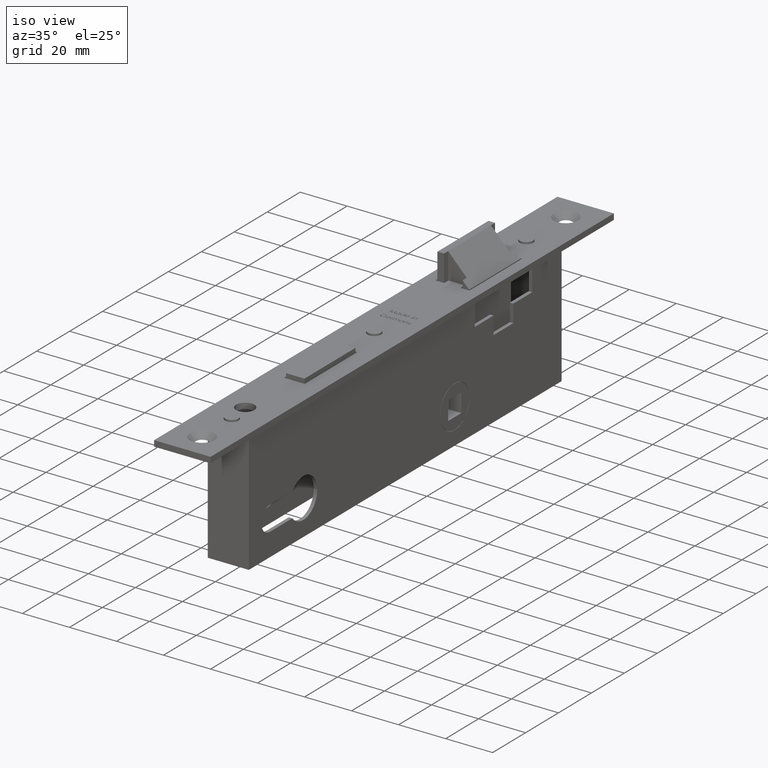
[diagram: clean part render]
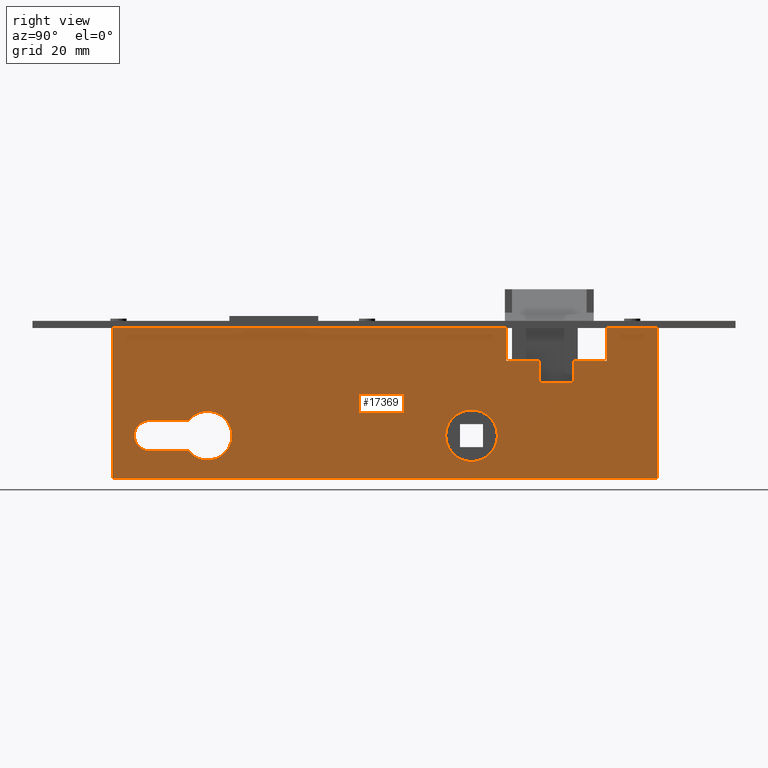
[diagram: tour spotlight — one face highlighted and labeled with its STEP entity id]
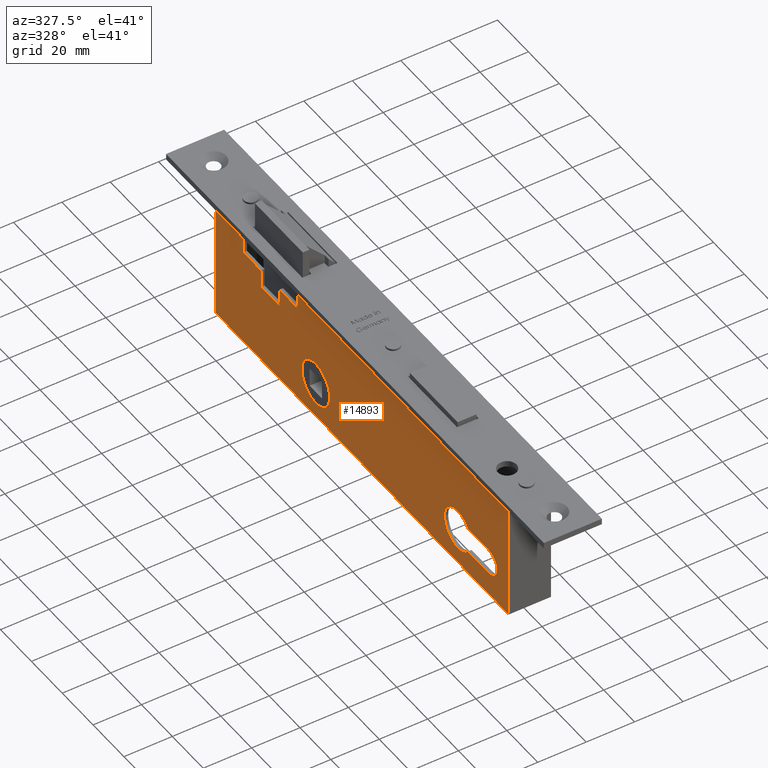
[diagram: tour spotlight — one face highlighted and labeled with its STEP entity id]
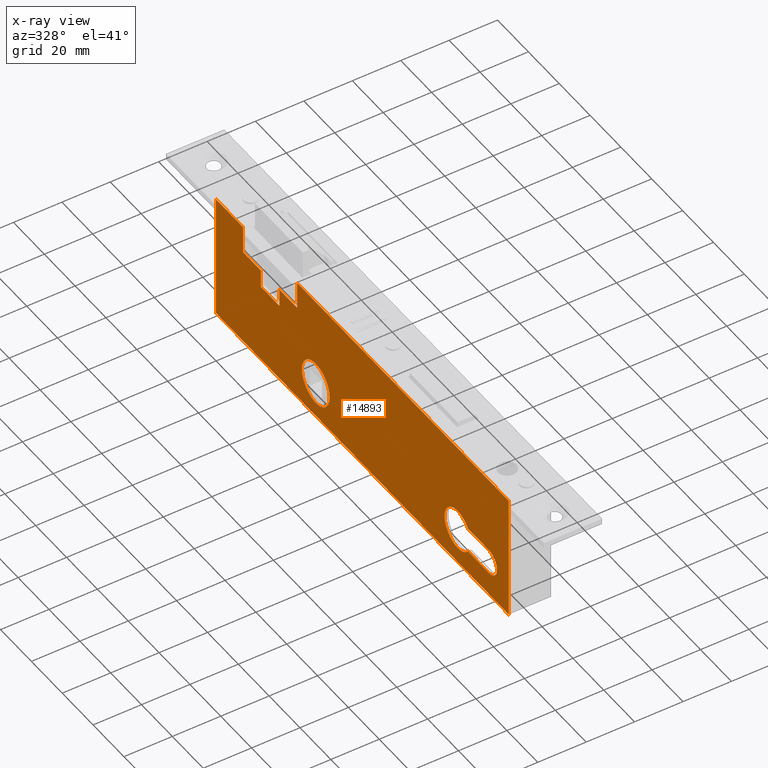
[diagram: x-ray of the same camera — body ghosted, this tour face saturated]
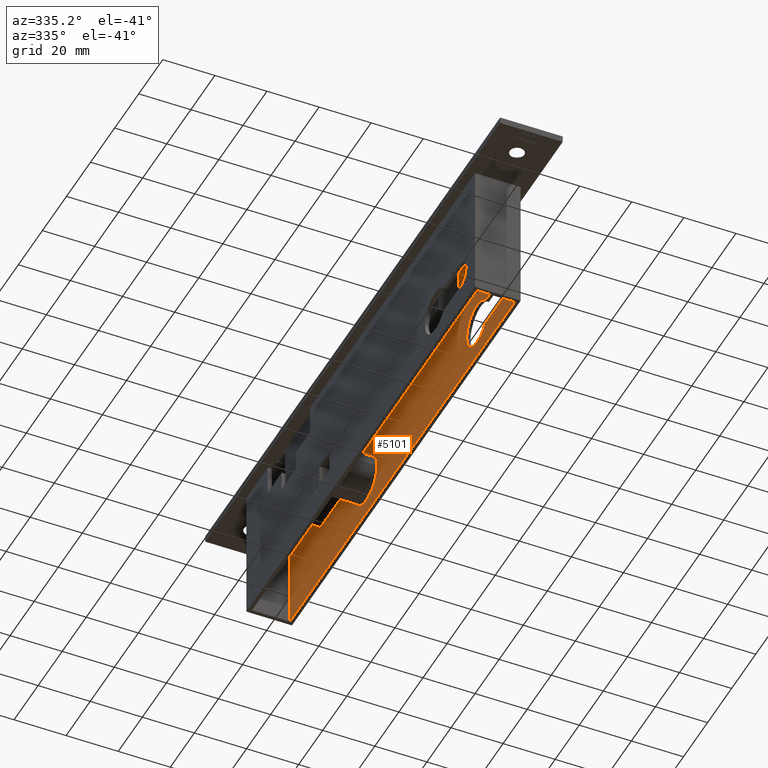
[diagram: tour spotlight — one face highlighted and labeled with its STEP entity id]
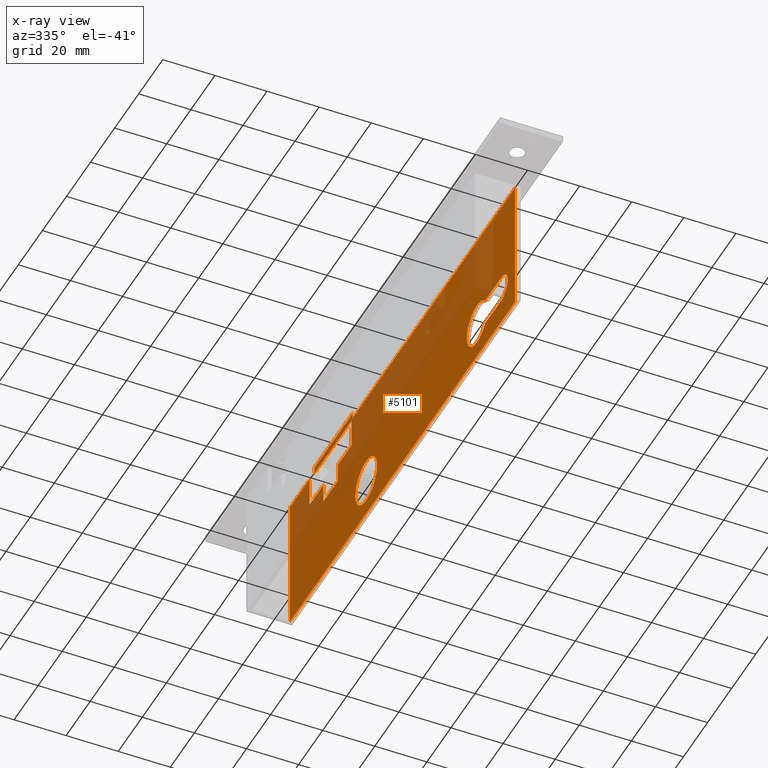
[diagram: x-ray of the same camera — body ghosted, this tour face saturated]
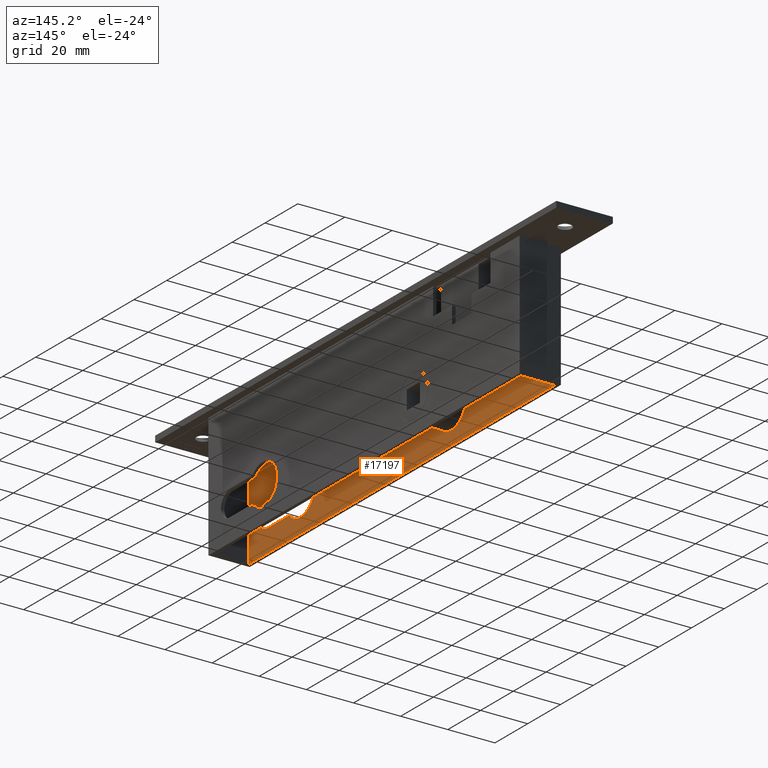
[diagram: tour spotlight — one face highlighted and labeled with its STEP entity id]
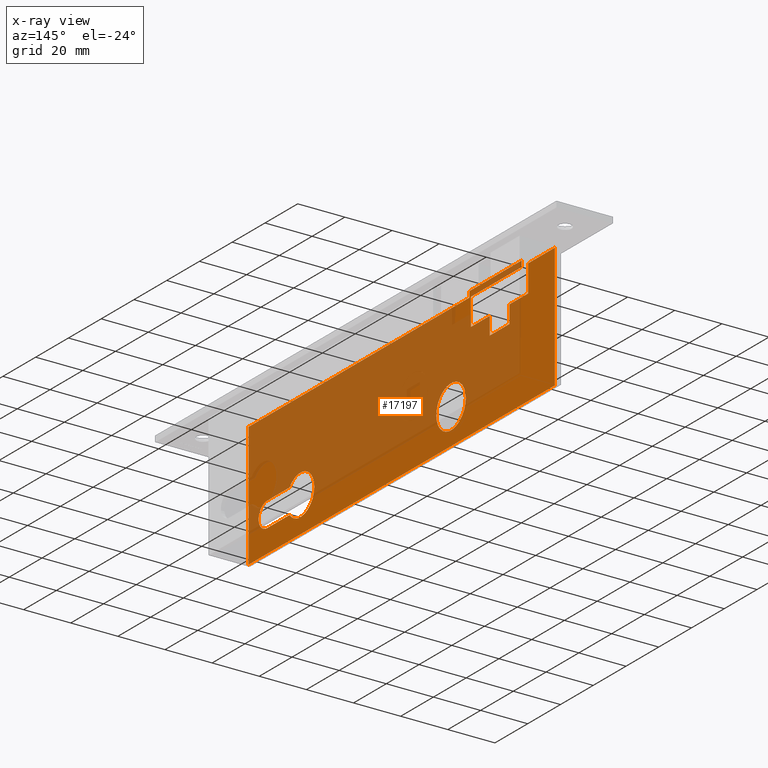
[diagram: x-ray of the same camera — body ghosted, this tour face saturated]
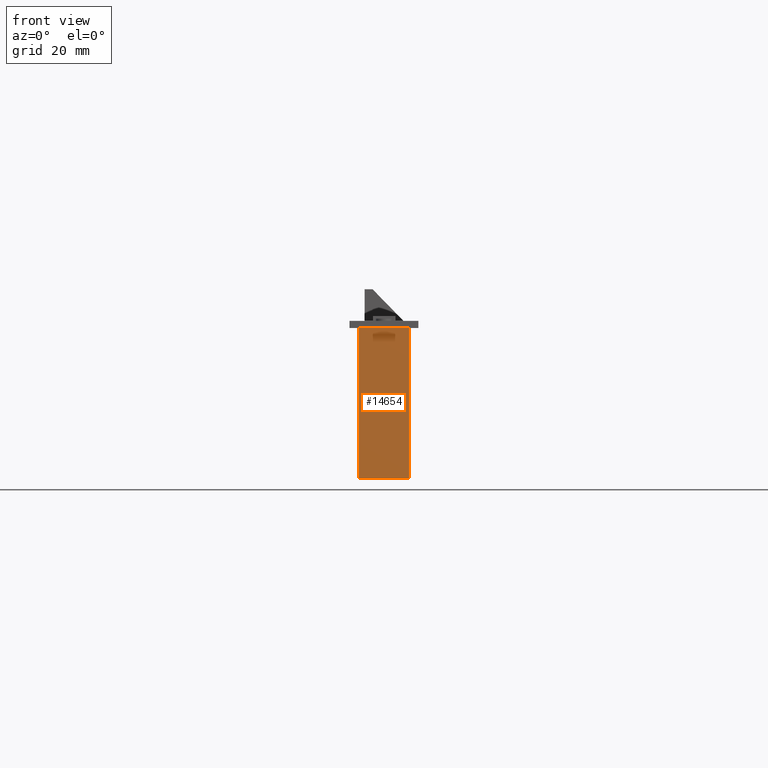
[diagram: tour spotlight — one face highlighted and labeled with its STEP entity id]
A machine part: a face-by-face anatomy tour. The part has 466 B-rep faces; the first image is the clean iso view, then the 5 largest visible faces are spotlighted one at a time (largest first), each with its STEP entity span.

Face 1 — right view, entity #17369. In plain terms, the highlighted planar face has unit normal (-1, -0, 0).
Definition (entity closure, byte-faithful):
#115 = DIRECTION ( 'NONE',  ( 1.508455196501573600E-016, 1.000000000000000000, 0.0000000000000000000 ) ) ;
#219 = AXIS2_PLACEMENT_3D ( 'NONE', #2516, #9686, #15048 ) ;
#349 = EDGE_CURVE ( 'NONE', #21659, #11505, #17190, .T. ) ;
#376 = VECTOR ( 'NONE', #16714, 1000.000000000000000 ) ;
#378 = CARTESIAN_POINT ( 'NONE',  ( 8.750000000000023100, 188.5999999999999700, -18.99999999999999600 ) ) ;
#459 = AXIS2_PLACEMENT_3D ( 'NONE', #1706, #15722, #15869 ) ;
#693 = DIRECTION ( 'NONE',  ( 1.445602896647337900E-016, 1.000000000000000000, -2.891205793294675900E-016 ) ) ;
#694 = ORIENTED_EDGE ( 'NONE', *, *, #4711, .F. ) ;
#828 = EDGE_LOOP ( 'NONE', ( #16589, #21394, #3618, #10124, #694, #10603, #8258, #11812, #8764, #21621, #8269, #17286 ) ) ;
#927 = EDGE_CURVE ( 'NONE', #19139, #16364, #22612, .T. ) ;
#1521 = EDGE_CURVE ( 'NONE', #3971, #15124, #12147, .T. ) ;
#1706 = CARTESIAN_POINT ( 'NONE',  ( 8.750000000000008900, 61.00000000000000000, -37.50000000000000000 ) ) ;
#2059 = EDGE_CURVE ( 'NONE', #19139, #21592, #2698, .T. ) ;
#2126 = VECTOR ( 'NONE', #13681, 1000.000000000000000 ) ;
#2197 = EDGE_CURVE ( 'NONE', #19107, #8135, #6874, .T. ) ;
#2458 = ORIENTED_EDGE ( 'NONE', *, *, #12487, .F. ) ;
#2516 = CARTESIAN_POINT ( 'NONE',  ( 8.750000000000019500, 153.0000000000000000, -37.49999999999999300 ) ) ;
#2698 = LINE ( 'NONE', #13918, #9937 ) ;
#2855 = CARTESIAN_POINT ( 'NONE',  ( 8.749999999999984000, 165.0999999999999700, 0.0000000000000000000 ) ) ;
#3513 = CARTESIAN_POINT ( 'NONE',  ( 8.750000000000024900, 200.0999999999999700, 0.0000000000000000000 ) ) ;
#3543 = DIRECTION ( 'NONE',  ( 1.095614826932720300E-016, -1.000000000000000000, 0.0000000000000000000 ) ) ;
#3618 = ORIENTED_EDGE ( 'NONE', *, *, #1521, .F. ) ;
#3971 = VERTEX_POINT ( 'NONE', #15399 ) ;
#4034 = AXIS2_PLACEMENT_3D ( 'NONE', #23022, #23099, #8725 ) ;
#4040 = VERTEX_POINT ( 'NONE', #2855 ) ;
#4348 = CARTESIAN_POINT ( 'NONE',  ( 8.749999999999998200, 27.89999999999998100, 0.0000000000000000000 ) ) ;
#4559 = ORIENTED_EDGE ( 'NONE', *, *, #2197, .F. ) ;
#4711 = EDGE_CURVE ( 'NONE', #11265, #9911, #17361, .T. ) ;
#5009 = VECTOR ( 'NONE', #5817, 1000.000000000000000 ) ;
#5218 = LINE ( 'NONE', #19625, #6348 ) ;
#5321 = CARTESIAN_POINT ( 'NONE',  ( 8.749999999999998200, 40.75000000000000700, -42.75000000000000000 ) ) ;
#5459 = VECTOR ( 'NONE', #115, 1000.000000000000000 ) ;
#5545 = VECTOR ( 'NONE', #14157, 1000.000000000000000 ) ;
#5817 = DIRECTION ( 'NONE',  ( 1.095614826932720300E-016, -1.000000000000000000, 0.0000000000000000000 ) ) ;
#5933 = AXIS2_PLACEMENT_3D ( 'NONE', #7968, #18679, #16976 ) ;
#6101 = EDGE_CURVE ( 'NONE', #4040, #17803, #20053, .T. ) ;
#6226 = CARTESIAN_POINT ( 'NONE',  ( 8.750000000000024900, 200.0999999999999700, 0.0000000000000000000 ) ) ;
#6348 = VECTOR ( 'NONE', #21503, 1000.000000000000000 ) ;
#6735 = CARTESIAN_POINT ( 'NONE',  ( 8.750000000000007100, 40.75000000000000000, -32.24999999999999300 ) ) ;
#6874 = CIRCLE ( 'NONE', #219, 9.000000000000035500 ) ;
#7071 = ORIENTED_EDGE ( 'NONE', *, *, #11635, .F. ) ;
#7127 = ORIENTED_EDGE ( 'NONE', *, *, #12177, .F. ) ;
#7386 = EDGE_LOOP ( 'NONE', ( #20080, #8139, #7071, #15527, #2458 ) ) ;
#7747 = VERTEX_POINT ( 'NONE', #13712 ) ;
#7968 = CARTESIAN_POINT ( 'NONE',  ( 8.750000000000007100, 40.75000000000000000, -37.50000000000000000 ) ) ;
#8015 = CARTESIAN_POINT ( 'NONE',  ( 8.750000000000019500, 165.0999999999999700, -11.50000000000000000 ) ) ;
#8135 = VERTEX_POINT ( 'NONE', #17278 ) ;
#8139 = ORIENTED_EDGE ( 'NONE', *, *, #21151, .F. ) ;
#8150 = CARTESIAN_POINT ( 'NONE',  ( 8.750000000000019500, 153.0000000000000000, -37.49999999999999300 ) ) ;
#8193 = VERTEX_POINT ( 'NONE', #15417 ) ;
#8258 = ORIENTED_EDGE ( 'NONE', *, *, #349, .F. ) ;
#8269 = ORIENTED_EDGE ( 'NONE', *, *, #927, .F. ) ;
#8520 = DIRECTION ( 'NONE',  ( 1.508455196501570200E-016, 1.000000000000000000, 0.0000000000000000000 ) ) ;
#8725 = DIRECTION ( 'NONE',  ( 2.040851148208010000E-016, 1.000000000000000000, 0.0000000000000000000 ) ) ;
#8760 = CARTESIAN_POINT ( 'NONE',  ( 8.750000000000008900, 54.31512902143953200, -42.75000000000000000 ) ) ;
#8764 = ORIENTED_EDGE ( 'NONE', *, *, #6101, .T. ) ;
#8772 = DIRECTION ( 'NONE',  ( -1.000000000000000000, -1.095614826932720300E-016, 0.0000000000000000000 ) ) ;
#8972 = VERTEX_POINT ( 'NONE', #6735 ) ;
#9428 = VECTOR ( 'NONE', #19332, 1000.000000000000000 ) ;
#9669 = LINE ( 'NONE', #19347, #2126 ) ;
#9686 = DIRECTION ( 'NONE',  ( 1.000000000000000000, -1.095614826932720200E-016, 0.0000000000000000000 ) ) ;
#9707 = AXIS2_PLACEMENT_3D ( 'NONE', #8150, #13313, #12896 ) ;
#9855 = CIRCLE ( 'NONE', #4034, 8.499999999999992900 ) ;
#9907 = LINE ( 'NONE', #15861, #18826 ) ;
#9911 = VERTEX_POINT ( 'NONE', #17712 ) ;
#9937 = VECTOR ( 'NONE', #11828, 1000.000000000000000 ) ;
#10124 = ORIENTED_EDGE ( 'NONE', *, *, #13847, .F. ) ;
#10247 = VECTOR ( 'NONE', #14005, 1000.000000000000000 ) ;
#10391 = VECTOR ( 'NONE', #11545, 1000.000000000000000 ) ;
#10545 = VERTEX_POINT ( 'NONE', #8760 ) ;
#10581 = EDGE_CURVE ( 'NONE', #11505, #11265, #15988, .T. ) ;
#10603 = ORIENTED_EDGE ( 'NONE', *, *, #10581, .F. ) ;
#10766 = LINE ( 'NONE', #22884, #9428 ) ;
#10861 = CARTESIAN_POINT ( 'NONE',  ( 8.749999999999978700, 217.8999999999999800, 0.0000000000000000000 ) ) ;
#11152 = CARTESIAN_POINT ( 'NONE',  ( 8.749999999999978700, 217.8999999999999800, 0.0000000000000000000 ) ) ;
#11265 = VERTEX_POINT ( 'NONE', #16490 ) ;
#11380 = CARTESIAN_POINT ( 'NONE',  ( 8.750000000000007100, 40.75000000000000000, -32.24999999999999300 ) ) ;
#11505 = VERTEX_POINT ( 'NONE', #14503 ) ;
#11545 = DIRECTION ( 'NONE',  ( -0.0000000000000000000, -1.000000000000000000, -0.0000000000000000000 ) ) ;
#11635 = EDGE_CURVE ( 'NONE', #8193, #8972, #12574, .T. ) ;
#11812 = ORIENTED_EDGE ( 'NONE', *, *, #15606, .F. ) ;
#11828 = DIRECTION ( 'NONE',  ( -0.0000000000000000000, -0.0000000000000000000, 1.000000000000000000 ) ) ;
#12147 = LINE ( 'NONE', #19175, #12441 ) ;
#12177 = EDGE_CURVE ( 'NONE', #8135, #19107, #22980, .T. ) ;
#12441 = VECTOR ( 'NONE', #8520, 1000.000000000000000 ) ;
#12487 = EDGE_CURVE ( 'NONE', #10545, #7747, #16506, .T. ) ;
#12560 = EDGE_CURVE ( 'NONE', #7747, #8193, #9855, .T. ) ;
#12574 = LINE ( 'NONE', #11380, #10391 ) ;
#12689 = CARTESIAN_POINT ( 'NONE',  ( 8.749999999999978700, 217.8999999999999800, 0.0000000000000000000 ) ) ;
#12859 = CARTESIAN_POINT ( 'NONE',  ( 8.749999999999978700, 217.8999999999999800, -52.50000000000000000 ) ) ;
#12896 = DIRECTION ( 'NONE',  ( 1.927470528863111400E-016, 1.000000000000000000, 0.0000000000000000000 ) ) ;
#13313 = DIRECTION ( 'NONE',  ( 1.000000000000000000, -1.095614826932720200E-016, 0.0000000000000000000 ) ) ;
#13445 = LINE ( 'NONE', #11152, #376 ) ;
#13681 = DIRECTION ( 'NONE',  ( 0.0000000000000000000, 1.000000000000000000, 0.0000000000000000000 ) ) ;
#13712 = CARTESIAN_POINT ( 'NONE',  ( 8.750000000000010700, 69.49999999999998600, -37.50000000000000000 ) ) ;
#13847 = EDGE_CURVE ( 'NONE', #9911, #3971, #5218, .T. ) ;
#13918 = CARTESIAN_POINT ( 'NONE',  ( 8.749999999999978700, 217.8999999999999800, -52.50000000000000000 ) ) ;
#13953 = CIRCLE ( 'NONE', #5933, 5.250000000000004400 ) ;
#13997 = CARTESIAN_POINT ( 'NONE',  ( 8.750000000000024900, 200.0999999999999700, -11.50000000000000000 ) ) ;
#14005 = DIRECTION ( 'NONE',  ( -0.0000000000000000000, -0.0000000000000000000, 1.000000000000000000 ) ) ;
#14157 = DIRECTION ( 'NONE',  ( 1.095614826932720300E-016, -1.000000000000000000, 0.0000000000000000000 ) ) ;
#14222 = CARTESIAN_POINT ( 'NONE',  ( 8.750000000000017800, 143.9999999999999700, -37.49999999999999300 ) ) ;
#14257 = CARTESIAN_POINT ( 'NONE',  ( 8.749999999999978700, 217.8999999999999800, -52.50000000000000000 ) ) ;
#14361 = VERTEX_POINT ( 'NONE', #5321 ) ;
#14391 = EDGE_CURVE ( 'NONE', #14361, #10545, #9669, .T. ) ;
#14503 = CARTESIAN_POINT ( 'NONE',  ( 8.750000000000021300, 176.5999999999999400, -11.50000000000000000 ) ) ;
#15048 = DIRECTION ( 'NONE',  ( 1.927470528863111400E-016, 1.000000000000000000, 0.0000000000000000000 ) ) ;
#15124 = VERTEX_POINT ( 'NONE', #13997 ) ;
#15162 = AXIS2_PLACEMENT_3D ( 'NONE', #14257, #8772, #3543 ) ;
#15399 = CARTESIAN_POINT ( 'NONE',  ( 8.750000000000023100, 188.5999999999999700, -11.50000000000000000 ) ) ;
#15417 = CARTESIAN_POINT ( 'NONE',  ( 8.750000000000007100, 54.31512902143953200, -32.24999999999999300 ) ) ;
#15527 = ORIENTED_EDGE ( 'NONE', *, *, #12560, .F. ) ;
#15548 = EDGE_CURVE ( 'NONE', #15124, #17020, #21985, .T. ) ;
#15606 = EDGE_CURVE ( 'NONE', #4040, #21659, #10766, .T. ) ;
#15722 = DIRECTION ( 'NONE',  ( 1.000000000000000000, -1.095614826932720200E-016, 0.0000000000000000000 ) ) ;
#15861 = CARTESIAN_POINT ( 'NONE',  ( 8.749999999999998200, 27.89999999999998100, -52.50000000000000000 ) ) ;
#15869 = DIRECTION ( 'NONE',  ( 2.040851148208010000E-016, 1.000000000000000000, 0.0000000000000000000 ) ) ;
#15988 = LINE ( 'NONE', #18074, #20505 ) ;
#16284 = DIRECTION ( 'NONE',  ( -0.0000000000000000000, -0.0000000000000000000, -1.000000000000000000 ) ) ;
#16364 = VERTEX_POINT ( 'NONE', #21938 ) ;
#16490 = CARTESIAN_POINT ( 'NONE',  ( 8.750000000000021300, 176.5999999999999400, -18.99999999999999300 ) ) ;
#16506 = CIRCLE ( 'NONE', #459, 8.499999999999992900 ) ;
#16589 = ORIENTED_EDGE ( 'NONE', *, *, #19808, .T. ) ;
#16714 = DIRECTION ( 'NONE',  ( 1.095614826932720300E-016, -1.000000000000000000, 0.0000000000000000000 ) ) ;
#16976 = DIRECTION ( 'NONE',  ( 0.0000000000000000000, 1.000000000000000000, 0.0000000000000000000 ) ) ;
#17020 = VERTEX_POINT ( 'NONE', #6226 ) ;
#17190 = LINE ( 'NONE', #17635, #5459 ) ;
#17278 = CARTESIAN_POINT ( 'NONE',  ( 8.750000000000021300, 162.0000000000000300, -37.49999999999999300 ) ) ;
#17286 = ORIENTED_EDGE ( 'NONE', *, *, #2059, .T. ) ;
#17361 = LINE ( 'NONE', #378, #20994 ) ;
#17369 = ADVANCED_FACE ( 'NONE', ( #19127, #19397, #21641 ), #17709, .F. ) ;
#17635 = CARTESIAN_POINT ( 'NONE',  ( 8.750000000000019500, 165.0999999999999700, -11.50000000000000000 ) ) ;
#17709 = PLANE ( 'NONE',  #15162 ) ;
#17712 = CARTESIAN_POINT ( 'NONE',  ( 8.750000000000023100, 188.5999999999999700, -18.99999999999999600 ) ) ;
#17803 = VERTEX_POINT ( 'NONE', #4348 ) ;
#18074 = CARTESIAN_POINT ( 'NONE',  ( 8.750000000000021300, 176.5999999999999400, -18.99999999999999300 ) ) ;
#18335 = EDGE_CURVE ( 'NONE', #16364, #17803, #9907, .T. ) ;
#18679 = DIRECTION ( 'NONE',  ( 1.000000000000000000, -1.095614826932720200E-016, 0.0000000000000000000 ) ) ;
#18826 = VECTOR ( 'NONE', #19469, 1000.000000000000000 ) ;
#19107 = VERTEX_POINT ( 'NONE', #14222 ) ;
#19127 = FACE_BOUND ( 'NONE', #19690, .T. ) ;
#19139 = VERTEX_POINT ( 'NONE', #19871 ) ;
#19175 = CARTESIAN_POINT ( 'NONE',  ( 8.750000000000023100, 188.5999999999999700, -11.50000000000000000 ) ) ;
#19332 = DIRECTION ( 'NONE',  ( 0.0000000000000000000, 0.0000000000000000000, -1.000000000000000000 ) ) ;
#19347 = CARTESIAN_POINT ( 'NONE',  ( 8.750000000000007100, 40.75000000000000000, -42.75000000000000000 ) ) ;
#19397 = FACE_BOUND ( 'NONE', #7386, .T. ) ;
#19469 = DIRECTION ( 'NONE',  ( -0.0000000000000000000, -0.0000000000000000000, 1.000000000000000000 ) ) ;
#19625 = CARTESIAN_POINT ( 'NONE',  ( 8.750000000000023100, 188.5999999999999700, -11.50000000000000000 ) ) ;
#19690 = EDGE_LOOP ( 'NONE', ( #7127, #4559 ) ) ;
#19808 = EDGE_CURVE ( 'NONE', #21592, #17020, #13445, .T. ) ;
#19871 = CARTESIAN_POINT ( 'NONE',  ( 8.749999999999978700, 217.8999999999999800, -52.50000000000000000 ) ) ;
#20053 = LINE ( 'NONE', #10861, #5545 ) ;
#20080 = ORIENTED_EDGE ( 'NONE', *, *, #14391, .F. ) ;
#20505 = VECTOR ( 'NONE', #16284, 1000.000000000000000 ) ;
#20994 = VECTOR ( 'NONE', #693, 1000.000000000000000 ) ;
#21151 = EDGE_CURVE ( 'NONE', #8972, #14361, #13953, .T. ) ;
#21394 = ORIENTED_EDGE ( 'NONE', *, *, #15548, .F. ) ;
#21503 = DIRECTION ( 'NONE',  ( -0.0000000000000000000, -0.0000000000000000000, 1.000000000000000000 ) ) ;
#21592 = VERTEX_POINT ( 'NONE', #12689 ) ;
#21621 = ORIENTED_EDGE ( 'NONE', *, *, #18335, .F. ) ;
#21641 = FACE_OUTER_BOUND ( 'NONE', #828, .T. ) ;
#21659 = VERTEX_POINT ( 'NONE', #8015 ) ;
#21938 = CARTESIAN_POINT ( 'NONE',  ( 8.749999999999998200, 27.89999999999998100, -52.50000000000000000 ) ) ;
#21985 = LINE ( 'NONE', #3513, #10247 ) ;
#22612 = LINE ( 'NONE', #12859, #5009 ) ;
#22884 = CARTESIAN_POINT ( 'NONE',  ( 8.750000000000019500, 165.0999999999999700, -4.286263797015740400E-015 ) ) ;
#22980 = CIRCLE ( 'NONE', #9707, 9.000000000000035500 ) ;
#23022 = CARTESIAN_POINT ( 'NONE',  ( 8.750000000000008900, 61.00000000000000000, -37.50000000000000000 ) ) ;
#23099 = DIRECTION ( 'NONE',  ( 1.000000000000000000, -1.095614826932720200E-016, 0.0000000000000000000 ) ) ;

Face 2 — auxiliary view, entity #14893. An x-ray twin of the same camera follows (body ghosted, this face saturated) — the face is partly hidden behind the body. In plain terms, the highlighted planar face has unit normal (1, -0, 0).
Definition (entity closure, byte-faithful):
#449 = CARTESIAN_POINT ( 'NONE',  ( -8.749999999999998200, 61.00000000000000000, -37.50000000000000000 ) ) ;
#502 = DIRECTION ( 'NONE',  ( 1.000000000000000000, -1.278217298088173700E-016, 0.0000000000000000000 ) ) ;
#622 = DIRECTION ( 'NONE',  ( 1.000000000000000000, -1.278217298088173700E-016, 0.0000000000000000000 ) ) ;
#681 = CIRCLE ( 'NONE', #21268, 9.000000000000035500 ) ;
#736 = ORIENTED_EDGE ( 'NONE', *, *, #23060, .T. ) ;
#765 = DIRECTION ( 'NONE',  ( 1.927470528863111400E-016, 1.000000000000000000, 0.0000000000000000000 ) ) ;
#1171 = CARTESIAN_POINT ( 'NONE',  ( -8.749999999999978700, 217.8999999999999800, 0.0000000000000000000 ) ) ;
#1559 = ORIENTED_EDGE ( 'NONE', *, *, #3059, .F. ) ;
#2064 = EDGE_CURVE ( 'NONE', #13105, #4197, #6322, .T. ) ;
#2307 = EDGE_CURVE ( 'NONE', #4552, #7871, #5735, .T. ) ;
#2354 = VERTEX_POINT ( 'NONE', #14215 ) ;
#2356 = AXIS2_PLACEMENT_3D ( 'NONE', #3374, #19113, #13934 ) ;
#2398 = DIRECTION ( 'NONE',  ( 2.040851148208010000E-016, 1.000000000000000000, 0.0000000000000000000 ) ) ;
#2717 = CARTESIAN_POINT ( 'NONE',  ( -8.749999999999987600, 153.0000000000000000, -37.49999999999999300 ) ) ;
#2847 = CARTESIAN_POINT ( 'NONE',  ( -8.749999999999978700, 217.8999999999999800, -11.50000000000000400 ) ) ;
#2934 = EDGE_CURVE ( 'NONE', #13103, #9950, #681, .T. ) ;
#3059 = EDGE_CURVE ( 'NONE', #8421, #11832, #16837, .T. ) ;
#3091 = CARTESIAN_POINT ( 'NONE',  ( -8.749999999999985800, 165.0999999999999700, -11.49999999999999600 ) ) ;
#3149 = DIRECTION ( 'NONE',  ( -0.0000000000000000000, -0.0000000000000000000, 1.000000000000000000 ) ) ;
#3202 = CARTESIAN_POINT ( 'NONE',  ( -8.750000000000001800, 27.89999999999998400, -52.50000000000000000 ) ) ;
#3374 = CARTESIAN_POINT ( 'NONE',  ( -8.750000000000000000, 40.75000000000000000, -37.50000000000000000 ) ) ;
#3450 = CARTESIAN_POINT ( 'NONE',  ( -8.749999999999978700, 217.8999999999999800, -32.24999999999999300 ) ) ;
#3521 = DIRECTION ( 'NONE',  ( -1.278217298088173700E-016, -1.000000000000000000, 0.0000000000000000000 ) ) ;
#3767 = FACE_BOUND ( 'NONE', #19759, .T. ) ;
#4197 = VERTEX_POINT ( 'NONE', #17100 ) ;
#4200 = VECTOR ( 'NONE', #20383, 1000.000000000000000 ) ;
#4212 = EDGE_CURVE ( 'NONE', #4197, #4491, #16719, .T. ) ;
#4491 = VERTEX_POINT ( 'NONE', #18070 ) ;
#4552 = VERTEX_POINT ( 'NONE', #9598 ) ;
#4564 = LINE ( 'NONE', #21559, #22735 ) ;
#4833 = LINE ( 'NONE', #14936, #12566 ) ;
#5538 = LINE ( 'NONE', #3450, #19210 ) ;
#5552 = ORIENTED_EDGE ( 'NONE', *, *, #4212, .T. ) ;
#5605 = ORIENTED_EDGE ( 'NONE', *, *, #20328, .T. ) ;
#5735 = LINE ( 'NONE', #6481, #19964 ) ;
#5762 = AXIS2_PLACEMENT_3D ( 'NONE', #449, #12930, #7700 ) ;
#5945 = LINE ( 'NONE', #15752, #17911 ) ;
#5953 = VERTEX_POINT ( 'NONE', #3202 ) ;
#6317 = EDGE_CURVE ( 'NONE', #11249, #20111, #9455, .T. ) ;
#6322 = LINE ( 'NONE', #16059, #17440 ) ;
#6481 = CARTESIAN_POINT ( 'NONE',  ( -8.749999999999980500, 200.0999999999999700, -52.50000000000000000 ) ) ;
#6645 = VERTEX_POINT ( 'NONE', #20765 ) ;
#6682 = CARTESIAN_POINT ( 'NONE',  ( -8.749999999999989300, 143.9999999999999700, -37.49999999999999300 ) ) ;
#7185 = DIRECTION ( 'NONE',  ( 1.278217298088173700E-016, 1.000000000000000000, -0.0000000000000000000 ) ) ;
#7350 = VERTEX_POINT ( 'NONE', #21483 ) ;
#7520 = CARTESIAN_POINT ( 'NONE',  ( -8.749999999999978700, 217.8999999999999800, -52.50000000000000000 ) ) ;
#7700 = DIRECTION ( 'NONE',  ( 2.040851148208010000E-016, 1.000000000000000000, 0.0000000000000000000 ) ) ;
#7871 = VERTEX_POINT ( 'NONE', #14409 ) ;
#7897 = VECTOR ( 'NONE', #22872, 1000.000000000000000 ) ;
#7999 = FACE_BOUND ( 'NONE', #14744, .T. ) ;
#8220 = CARTESIAN_POINT ( 'NONE',  ( -8.749999999999998200, 54.31512902143953200, -42.75000000000000000 ) ) ;
#8421 = VERTEX_POINT ( 'NONE', #18169 ) ;
#8512 = CARTESIAN_POINT ( 'NONE',  ( -8.749999999999978700, 217.8999999999999800, -42.75000000000000000 ) ) ;
#8959 = EDGE_CURVE ( 'NONE', #2354, #18780, #22030, .T. ) ;
#9097 = EDGE_CURVE ( 'NONE', #20111, #2354, #5538, .T. ) ;
#9158 = DIRECTION ( 'NONE',  ( 0.0000000000000000000, 0.0000000000000000000, -1.000000000000000000 ) ) ;
#9186 = LINE ( 'NONE', #2847, #4200 ) ;
#9455 = CIRCLE ( 'NONE', #11266, 8.499999999999992900 ) ;
#9467 = CARTESIAN_POINT ( 'NONE',  ( -8.749999999999984000, 176.5999999999999400, -52.50000000000000000 ) ) ;
#9544 = VECTOR ( 'NONE', #12235, 1000.000000000000000 ) ;
#9574 = EDGE_CURVE ( 'NONE', #5953, #8421, #19645, .T. ) ;
#9598 = CARTESIAN_POINT ( 'NONE',  ( -8.749999999999980500, 200.0999999999999700, -11.50000000000000000 ) ) ;
#9643 = FACE_OUTER_BOUND ( 'NONE', #15068, .T. ) ;
#9789 = DIRECTION ( 'NONE',  ( 0.0000000000000000000, 0.0000000000000000000, -1.000000000000000000 ) ) ;
#9950 = VERTEX_POINT ( 'NONE', #14344 ) ;
#10033 = DIRECTION ( 'NONE',  ( -0.0000000000000000000, -0.0000000000000000000, 1.000000000000000000 ) ) ;
#10159 = CARTESIAN_POINT ( 'NONE',  ( -8.749999999999982200, 188.5999999999999700, -52.50000000000000000 ) ) ;
#10197 = ORIENTED_EDGE ( 'NONE', *, *, #19710, .T. ) ;
#10311 = ORIENTED_EDGE ( 'NONE', *, *, #17755, .T. ) ;
#10314 = DIRECTION ( 'NONE',  ( 1.278217298088173700E-016, 1.000000000000000000, 0.0000000000000000000 ) ) ;
#10944 = VERTEX_POINT ( 'NONE', #12563 ) ;
#11126 = PLANE ( 'NONE',  #20386 ) ;
#11249 = VERTEX_POINT ( 'NONE', #12798 ) ;
#11266 = AXIS2_PLACEMENT_3D ( 'NONE', #14856, #622, #2398 ) ;
#11699 = DIRECTION ( 'NONE',  ( 1.000000000000000000, -1.278217298088173700E-016, 0.0000000000000000000 ) ) ;
#11767 = EDGE_CURVE ( 'NONE', #10944, #6645, #15968, .T. ) ;
#11832 = VERTEX_POINT ( 'NONE', #20986 ) ;
#11932 = EDGE_CURVE ( 'NONE', #4491, #10944, #5945, .T. ) ;
#11954 = VECTOR ( 'NONE', #9789, 1000.000000000000000 ) ;
#12075 = ORIENTED_EDGE ( 'NONE', *, *, #12488, .T. ) ;
#12081 = CIRCLE ( 'NONE', #21125, 9.000000000000035500 ) ;
#12235 = DIRECTION ( 'NONE',  ( 1.278217298088173700E-016, 1.000000000000000000, -0.0000000000000000000 ) ) ;
#12302 = VECTOR ( 'NONE', #3149, 1000.000000000000000 ) ;
#12488 = EDGE_CURVE ( 'NONE', #18780, #22354, #17633, .T. ) ;
#12542 = ORIENTED_EDGE ( 'NONE', *, *, #19671, .T. ) ;
#12556 = CARTESIAN_POINT ( 'NONE',  ( -8.749999999999996400, 54.31512902143953200, -32.24999999999999300 ) ) ;
#12563 = CARTESIAN_POINT ( 'NONE',  ( -8.749999999999984000, 188.5999999999999700, -18.99999999999999600 ) ) ;
#12566 = VECTOR ( 'NONE', #10033, 1000.000000000000000 ) ;
#12588 = EDGE_CURVE ( 'NONE', #16288, #7350, #22430, .T. ) ;
#12798 = CARTESIAN_POINT ( 'NONE',  ( -8.749999999999996400, 69.49999999999998600, -37.50000000000000000 ) ) ;
#12930 = DIRECTION ( 'NONE',  ( 1.000000000000000000, -1.278217298088173700E-016, 0.0000000000000000000 ) ) ;
#12980 = CARTESIAN_POINT ( 'NONE',  ( -8.750000000000000000, 40.75000000000000000, -42.75000000000000000 ) ) ;
#13103 = VERTEX_POINT ( 'NONE', #6682 ) ;
#13105 = VERTEX_POINT ( 'NONE', #3091 ) ;
#13142 = VECTOR ( 'NONE', #22672, 1000.000000000000000 ) ;
#13528 = VECTOR ( 'NONE', #20813, 1000.000000000000000 ) ;
#13934 = DIRECTION ( 'NONE',  ( 0.0000000000000000000, 1.000000000000000000, 0.0000000000000000000 ) ) ;
#14215 = CARTESIAN_POINT ( 'NONE',  ( -8.750000000000000000, 40.75000000000000000, -32.24999999999999300 ) ) ;
#14344 = CARTESIAN_POINT ( 'NONE',  ( -8.749999999999985800, 162.0000000000000300, -37.49999999999999300 ) ) ;
#14409 = CARTESIAN_POINT ( 'NONE',  ( -8.749999999999980500, 200.0999999999999700, 0.0000000000000000000 ) ) ;
#14663 = CARTESIAN_POINT ( 'NONE',  ( -8.750000000000001800, 27.89999999999998400, -0.0000000000000000000 ) ) ;
#14744 = EDGE_LOOP ( 'NONE', ( #10311, #19050 ) ) ;
#14856 = CARTESIAN_POINT ( 'NONE',  ( -8.749999999999998200, 61.00000000000000000, -37.50000000000000000 ) ) ;
#14893 = ADVANCED_FACE ( 'NONE', ( #7999, #3767, #9643 ), #11126, .F. ) ;
#14913 = ORIENTED_EDGE ( 'NONE', *, *, #12588, .T. ) ;
#14936 = CARTESIAN_POINT ( 'NONE',  ( -8.750000000000001800, 27.89999999999998400, -52.50000000000000000 ) ) ;
#15063 = ORIENTED_EDGE ( 'NONE', *, *, #11932, .T. ) ;
#15068 = EDGE_LOOP ( 'NONE', ( #736, #20181, #19637, #1559, #19018, #5605, #14913, #12542, #16023, #5552, #15063, #20113 ) ) ;
#15247 = DIRECTION ( 'NONE',  ( 1.927470528863111400E-016, 1.000000000000000000, 0.0000000000000000000 ) ) ;
#15248 = LINE ( 'NONE', #1171, #13528 ) ;
#15752 = CARTESIAN_POINT ( 'NONE',  ( -8.749999999999978700, 217.8999999999999800, -19.00000000000000400 ) ) ;
#15968 = LINE ( 'NONE', #10159, #13142 ) ;
#16023 = ORIENTED_EDGE ( 'NONE', *, *, #2064, .T. ) ;
#16054 = DIRECTION ( 'NONE',  ( 1.278217298088173700E-016, 1.000000000000000000, -2.891205793294675400E-016 ) ) ;
#16059 = CARTESIAN_POINT ( 'NONE',  ( -8.749999999999978700, 217.8999999999999800, -11.50000000000000400 ) ) ;
#16288 = VERTEX_POINT ( 'NONE', #14663 ) ;
#16719 = LINE ( 'NONE', #9467, #11954 ) ;
#16736 = EDGE_CURVE ( 'NONE', #7871, #11832, #15248, .T. ) ;
#16837 = LINE ( 'NONE', #20851, #12302 ) ;
#17100 = CARTESIAN_POINT ( 'NONE',  ( -8.749999999999984000, 176.5999999999999400, -11.50000000000000000 ) ) ;
#17440 = VECTOR ( 'NONE', #10314, 1000.000000000000000 ) ;
#17564 = ORIENTED_EDGE ( 'NONE', *, *, #8959, .T. ) ;
#17630 = ORIENTED_EDGE ( 'NONE', *, *, #6317, .T. ) ;
#17633 = LINE ( 'NONE', #8512, #7897 ) ;
#17755 = EDGE_CURVE ( 'NONE', #9950, #13103, #12081, .T. ) ;
#17832 = CARTESIAN_POINT ( 'NONE',  ( -8.749999999999978700, 217.8999999999999800, -52.50000000000000000 ) ) ;
#17911 = VECTOR ( 'NONE', #16054, 1000.000000000000000 ) ;
#17959 = VECTOR ( 'NONE', #7185, 1000.000000000000000 ) ;
#18070 = CARTESIAN_POINT ( 'NONE',  ( -8.749999999999984000, 176.5999999999999400, -18.99999999999999300 ) ) ;
#18077 = DIRECTION ( 'NONE',  ( 1.278217298088173700E-016, 1.000000000000000000, 0.0000000000000000000 ) ) ;
#18169 = CARTESIAN_POINT ( 'NONE',  ( -8.749999999999978700, 217.8999999999999800, -52.50000000000000000 ) ) ;
#18747 = ORIENTED_EDGE ( 'NONE', *, *, #9097, .T. ) ;
#18780 = VERTEX_POINT ( 'NONE', #12980 ) ;
#19018 = ORIENTED_EDGE ( 'NONE', *, *, #9574, .F. ) ;
#19050 = ORIENTED_EDGE ( 'NONE', *, *, #2934, .T. ) ;
#19113 = DIRECTION ( 'NONE',  ( 1.000000000000000000, -1.278217298088173700E-016, 0.0000000000000000000 ) ) ;
#19210 = VECTOR ( 'NONE', #3521, 1000.000000000000000 ) ;
#19637 = ORIENTED_EDGE ( 'NONE', *, *, #16736, .T. ) ;
#19645 = LINE ( 'NONE', #17832, #17959 ) ;
#19671 = EDGE_CURVE ( 'NONE', #7350, #13105, #4564, .T. ) ;
#19710 = EDGE_CURVE ( 'NONE', #22354, #11249, #22988, .T. ) ;
#19759 = EDGE_LOOP ( 'NONE', ( #18747, #17564, #12075, #10197, #17630 ) ) ;
#19964 = VECTOR ( 'NONE', #22573, 1000.000000000000000 ) ;
#20111 = VERTEX_POINT ( 'NONE', #12556 ) ;
#20113 = ORIENTED_EDGE ( 'NONE', *, *, #11767, .T. ) ;
#20181 = ORIENTED_EDGE ( 'NONE', *, *, #2307, .T. ) ;
#20328 = EDGE_CURVE ( 'NONE', #5953, #16288, #4833, .T. ) ;
#20383 = DIRECTION ( 'NONE',  ( 1.278217298088173700E-016, 1.000000000000000000, 0.0000000000000000000 ) ) ;
#20386 = AXIS2_PLACEMENT_3D ( 'NONE', #7520, #502, #18077 ) ;
#20388 = CARTESIAN_POINT ( 'NONE',  ( -8.749999999999987600, 153.0000000000000000, -37.49999999999999300 ) ) ;
#20765 = CARTESIAN_POINT ( 'NONE',  ( -8.749999999999982200, 188.5999999999999700, -11.50000000000000000 ) ) ;
#20813 = DIRECTION ( 'NONE',  ( 1.278217298088173700E-016, 1.000000000000000000, -0.0000000000000000000 ) ) ;
#20851 = CARTESIAN_POINT ( 'NONE',  ( -8.749999999999978700, 217.8999999999999800, -52.50000000000000000 ) ) ;
#20986 = CARTESIAN_POINT ( 'NONE',  ( -8.749999999999978700, 217.8999999999999800, 0.0000000000000000000 ) ) ;
#21107 = CARTESIAN_POINT ( 'NONE',  ( -8.749999999999978700, 217.8999999999999800, 0.0000000000000000000 ) ) ;
#21125 = AXIS2_PLACEMENT_3D ( 'NONE', #20388, #22365, #765 ) ;
#21268 = AXIS2_PLACEMENT_3D ( 'NONE', #2717, #11699, #15247 ) ;
#21483 = CARTESIAN_POINT ( 'NONE',  ( -8.749999999999985800, 165.0999999999999700, -4.286263797015740400E-015 ) ) ;
#21559 = CARTESIAN_POINT ( 'NONE',  ( -8.749999999999985800, 165.0999999999999700, -52.50000000000000000 ) ) ;
#22030 = CIRCLE ( 'NONE', #2356, 5.250000000000004400 ) ;
#22354 = VERTEX_POINT ( 'NONE', #8220 ) ;
#22365 = DIRECTION ( 'NONE',  ( 1.000000000000000000, -1.278217298088173700E-016, 0.0000000000000000000 ) ) ;
#22430 = LINE ( 'NONE', #21107, #9544 ) ;
#22573 = DIRECTION ( 'NONE',  ( -0.0000000000000000000, 0.0000000000000000000, 1.000000000000000000 ) ) ;
#22672 = DIRECTION ( 'NONE',  ( -0.0000000000000000000, 0.0000000000000000000, 1.000000000000000000 ) ) ;
#22735 = VECTOR ( 'NONE', #9158, 1000.000000000000000 ) ;
#22872 = DIRECTION ( 'NONE',  ( 1.278217298088173700E-016, 1.000000000000000000, 0.0000000000000000000 ) ) ;
#22988 = CIRCLE ( 'NONE', #5762, 8.499999999999992900 ) ;
#23060 = EDGE_CURVE ( 'NONE', #6645, #4552, #9186, .T. ) ;

Face 3 — auxiliary view, entity #5101. An x-ray twin of the same camera follows (body ghosted, this face saturated) — the face is partly hidden behind the body. In plain terms, the highlighted planar face has unit normal (-1, 0, 0).
Definition (entity closure, byte-faithful):
#41 = CARTESIAN_POINT ( 'NONE',  ( 7.250000000000000000, 164.1000000000000200, -11.50000000000000000 ) ) ;
#74 = DIRECTION ( 'NONE',  ( 0.0000000000000000000, -1.000000000000000000, 0.0000000000000000000 ) ) ;
#119 = DIRECTION ( 'NONE',  ( 0.0000000000000000000, -1.000000000000000000, 0.0000000000000000000 ) ) ;
#170 = LINE ( 'NONE', #8266, #1291 ) ;
#242 = ORIENTED_EDGE ( 'NONE', *, *, #16812, .F. ) ;
#418 = VERTEX_POINT ( 'NONE', #6976 ) ;
#609 = EDGE_CURVE ( 'NONE', #15877, #4244, #6939, .T. ) ;
#620 = VECTOR ( 'NONE', #4735, 1000.000000000000000 ) ;
#705 = CARTESIAN_POINT ( 'NONE',  ( 7.249999999999998200, 29.39999999999998100, -52.50000000000000000 ) ) ;
#987 = VECTOR ( 'NONE', #8656, 1000.000000000000000 ) ;
#1004 = EDGE_CURVE ( 'NONE', #4847, #18920, #18671, .T. ) ;
#1035 = ORIENTED_EDGE ( 'NONE', *, *, #15185, .F. ) ;
#1265 = LINE ( 'NONE', #10295, #22775 ) ;
#1291 = VECTOR ( 'NONE', #11786, 1000.000000000000000 ) ;
#1506 = CARTESIAN_POINT ( 'NONE',  ( 7.250000000000000000, 54.31512902143953200, -42.75000000000000000 ) ) ;
#1527 = LINE ( 'NONE', #3197, #987 ) ;
#1697 = ORIENTED_EDGE ( 'NONE', *, *, #3362, .F. ) ;
#1933 = EDGE_LOOP ( 'NONE', ( #242, #2247, #15407, #9728, #1035 ) ) ;
#2030 = EDGE_CURVE ( 'NONE', #8845, #11752, #21972, .T. ) ;
#2230 = DIRECTION ( 'NONE',  ( 0.0000000000000000000, 1.000000000000000000, 0.0000000000000000000 ) ) ;
#2234 = ORIENTED_EDGE ( 'NONE', *, *, #11290, .T. ) ;
#2247 = ORIENTED_EDGE ( 'NONE', *, *, #3834, .F. ) ;
#2294 = LINE ( 'NONE', #12394, #17886 ) ;
#2493 = DIRECTION ( 'NONE',  ( -0.0000000000000000000, -0.0000000000000000000, 1.000000000000000000 ) ) ;
#2534 = VECTOR ( 'NONE', #20004, 1000.000000000000000 ) ;
#2889 = VERTEX_POINT ( 'NONE', #9873 ) ;
#2946 = AXIS2_PLACEMENT_3D ( 'NONE', #14277, #14357, #3630 ) ;
#3197 = CARTESIAN_POINT ( 'NONE',  ( 7.250000000000000000, 176.5999999999999400, 2.500000000000000000 ) ) ;
#3362 = EDGE_CURVE ( 'NONE', #20458, #14382, #15138, .T. ) ;
#3495 = CARTESIAN_POINT ( 'NONE',  ( 7.249999999999999100, 40.75000000000000000, -37.50000000000000000 ) ) ;
#3578 = CARTESIAN_POINT ( 'NONE',  ( 7.250000000000000000, 164.1000000000000200, -11.50000000000000000 ) ) ;
#3630 = DIRECTION ( 'NONE',  ( 0.0000000000000000000, 0.0000000000000000000, 1.000000000000000000 ) ) ;
#3636 = EDGE_CURVE ( 'NONE', #6133, #10103, #2294, .T. ) ;
#3646 = VERTEX_POINT ( 'NONE', #18292 ) ;
#3784 = DIRECTION ( 'NONE',  ( 0.0000000000000000000, 0.0000000000000000000, -1.000000000000000000 ) ) ;
#3799 = EDGE_CURVE ( 'NONE', #13723, #8845, #14206, .T. ) ;
#3834 = EDGE_CURVE ( 'NONE', #8947, #6687, #18401, .T. ) ;
#3855 = CARTESIAN_POINT ( 'NONE',  ( 7.249999999999976000, 216.3999999999999800, 0.0000000000000000000 ) ) ;
#3950 = CARTESIAN_POINT ( 'NONE',  ( 7.249999999999999100, 176.5999999999999400, -11.50000000000000000 ) ) ;
#4002 = CARTESIAN_POINT ( 'NONE',  ( 7.250000000000000900, 162.0000000000000300, -37.49999999999999300 ) ) ;
#4056 = VERTEX_POINT ( 'NONE', #22764 ) ;
#4244 = VERTEX_POINT ( 'NONE', #18897 ) ;
#4358 = CARTESIAN_POINT ( 'NONE',  ( 7.250000000000000000, 164.1000000000000200, 0.0000000000000000000 ) ) ;
#4735 = DIRECTION ( 'NONE',  ( -0.0000000000000000000, -0.0000000000000000000, 1.000000000000000000 ) ) ;
#4815 = CARTESIAN_POINT ( 'NONE',  ( 7.249999999999976000, 216.3999999999999800, -52.50000000000000000 ) ) ;
#4847 = VERTEX_POINT ( 'NONE', #17790 ) ;
#4869 = DIRECTION ( 'NONE',  ( -1.000000000000000000, 0.0000000000000000000, 0.0000000000000000000 ) ) ;
#5101 = ADVANCED_FACE ( 'NONE', ( #9296, #15965, #7080 ), #7574, .T. ) ;
#5203 = CIRCLE ( 'NONE', #11849, 5.250000000000004400 ) ;
#5478 = VERTEX_POINT ( 'NONE', #3950 ) ;
#5546 = DIRECTION ( 'NONE',  ( 0.0000000000000000000, 0.0000000000000000000, 1.000000000000000000 ) ) ;
#5698 = ORIENTED_EDGE ( 'NONE', *, *, #2030, .F. ) ;
#5731 = CARTESIAN_POINT ( 'NONE',  ( 7.250000000000000000, 164.1000000000000200, -42.75000000000000000 ) ) ;
#5887 = EDGE_CURVE ( 'NONE', #4847, #15877, #8400, .T. ) ;
#5898 = LINE ( 'NONE', #4815, #620 ) ;
#6032 = VECTOR ( 'NONE', #16530, 1000.000000000000000 ) ;
#6049 = AXIS2_PLACEMENT_3D ( 'NONE', #8991, #21702, #5546 ) ;
#6133 = VERTEX_POINT ( 'NONE', #12638 ) ;
#6314 = VECTOR ( 'NONE', #119, 1000.000000000000000 ) ;
#6672 = AXIS2_PLACEMENT_3D ( 'NONE', #14869, #9430, #21908 ) ;
#6687 = VERTEX_POINT ( 'NONE', #19109 ) ;
#6721 = VECTOR ( 'NONE', #13600, 1000.000000000000000 ) ;
#6818 = CARTESIAN_POINT ( 'NONE',  ( 7.250000000000000900, 153.0000000000000000, -37.49999999999999300 ) ) ;
#6939 = LINE ( 'NONE', #16855, #6032 ) ;
#6976 = CARTESIAN_POINT ( 'NONE',  ( 7.250000000000000900, 143.9999999999999700, -37.49999999999999300 ) ) ;
#7080 = FACE_OUTER_BOUND ( 'NONE', #9757, .T. ) ;
#7091 = DIRECTION ( 'NONE',  ( 0.0000000000000000000, 0.0000000000000000000, 1.000000000000000000 ) ) ;
#7244 = DIRECTION ( 'NONE',  ( -1.000000000000000000, 0.0000000000000000000, 0.0000000000000000000 ) ) ;
#7413 = EDGE_CURVE ( 'NONE', #10271, #8947, #14556, .T. ) ;
#7555 = CARTESIAN_POINT ( 'NONE',  ( 7.250000000000000000, 164.1000000000000200, 2.500000000000000000 ) ) ;
#7574 = PLANE ( 'NONE',  #6672 ) ;
#7845 = VECTOR ( 'NONE', #9928, 1000.000000000000000 ) ;
#7928 = EDGE_CURVE ( 'NONE', #2889, #11347, #12255, .T. ) ;
#8107 = ORIENTED_EDGE ( 'NONE', *, *, #5887, .F. ) ;
#8266 = CARTESIAN_POINT ( 'NONE',  ( 7.250000000000000000, 164.1000000000000200, -4.336808689942017700E-015 ) ) ;
#8400 = LINE ( 'NONE', #22586, #7845 ) ;
#8444 = DIRECTION ( 'NONE',  ( 0.0000000000000000000, 1.000000000000000000, 0.0000000000000000000 ) ) ;
#8533 = EDGE_CURVE ( 'NONE', #17560, #418, #11615, .T. ) ;
#8656 = DIRECTION ( 'NONE',  ( 0.0000000000000000000, 0.0000000000000000000, 1.000000000000000000 ) ) ;
#8845 = VERTEX_POINT ( 'NONE', #9864 ) ;
#8947 = VERTEX_POINT ( 'NONE', #1506 ) ;
#8991 = CARTESIAN_POINT ( 'NONE',  ( 7.250000000000000900, 61.00000000000000000, -37.50000000000000000 ) ) ;
#9148 = DIRECTION ( 'NONE',  ( 0.0000000000000000000, 0.0000000000000000000, 1.000000000000000000 ) ) ;
#9296 = FACE_BOUND ( 'NONE', #14708, .T. ) ;
#9312 = VERTEX_POINT ( 'NONE', #16598 ) ;
#9430 = DIRECTION ( 'NONE',  ( -1.000000000000000000, 0.0000000000000000000, 0.0000000000000000000 ) ) ;
#9502 = EDGE_CURVE ( 'NONE', #18920, #9312, #1265, .T. ) ;
#9728 = ORIENTED_EDGE ( 'NONE', *, *, #16120, .F. ) ;
#9757 = EDGE_LOOP ( 'NONE', ( #12413, #10131, #16018, #9820, #5698, #17601, #10427, #11099, #1697, #20965, #18241, #2234, #16914, #8107, #17881, #20738 ) ) ;
#9781 = DIRECTION ( 'NONE',  ( 0.0000000000000000000, 0.0000000000000000000, 1.000000000000000000 ) ) ;
#9783 = VECTOR ( 'NONE', #3784, 1000.000000000000000 ) ;
#9820 = ORIENTED_EDGE ( 'NONE', *, *, #10816, .F. ) ;
#9864 = CARTESIAN_POINT ( 'NONE',  ( 7.250000000000000900, 188.5999999999999700, -18.99999999999999600 ) ) ;
#9873 = CARTESIAN_POINT ( 'NONE',  ( 7.250000000000000000, 165.0999999999999700, -11.50000000000000000 ) ) ;
#9928 = DIRECTION ( 'NONE',  ( -0.0000000000000000000, -0.0000000000000000000, -1.000000000000000000 ) ) ;
#10050 = ORIENTED_EDGE ( 'NONE', *, *, #8533, .F. ) ;
#10103 = VERTEX_POINT ( 'NONE', #21943 ) ;
#10131 = ORIENTED_EDGE ( 'NONE', *, *, #7928, .F. ) ;
#10199 = VERTEX_POINT ( 'NONE', #11755 ) ;
#10271 = VERTEX_POINT ( 'NONE', #17415 ) ;
#10295 = CARTESIAN_POINT ( 'NONE',  ( 7.250000000000000000, 196.1000000000000200, 2.500000000000000000 ) ) ;
#10413 = VECTOR ( 'NONE', #8444, 1000.000000000000000 ) ;
#10427 = ORIENTED_EDGE ( 'NONE', *, *, #12656, .F. ) ;
#10816 = EDGE_CURVE ( 'NONE', #11752, #5478, #1527, .T. ) ;
#10837 = AXIS2_PLACEMENT_3D ( 'NONE', #6818, #4869, #9781 ) ;
#10997 = CARTESIAN_POINT ( 'NONE',  ( 7.250000000000000000, 188.5999999999999700, 2.500000000000000000 ) ) ;
#11099 = ORIENTED_EDGE ( 'NONE', *, *, #22384, .F. ) ;
#11290 = EDGE_CURVE ( 'NONE', #10103, #4244, #13171, .T. ) ;
#11297 = LINE ( 'NONE', #41, #6314 ) ;
#11347 = VERTEX_POINT ( 'NONE', #17128 ) ;
#11615 = CIRCLE ( 'NONE', #16832, 9.000000000000024900 ) ;
#11752 = VERTEX_POINT ( 'NONE', #16870 ) ;
#11755 = CARTESIAN_POINT ( 'NONE',  ( 7.249999999999999100, 200.0999999999999700, -11.50000000000000000 ) ) ;
#11786 = DIRECTION ( 'NONE',  ( 0.0000000000000000000, 1.000000000000000000, 1.224646799147354400E-016 ) ) ;
#11849 = AXIS2_PLACEMENT_3D ( 'NONE', #3495, #7244, #7091 ) ;
#12255 = LINE ( 'NONE', #16285, #16484 ) ;
#12282 = EDGE_CURVE ( 'NONE', #418, #17560, #18177, .T. ) ;
#12394 = CARTESIAN_POINT ( 'NONE',  ( 7.249999999999976000, 216.3999999999999800, -52.50000000000000000 ) ) ;
#12413 = ORIENTED_EDGE ( 'NONE', *, *, #17184, .F. ) ;
#12419 = VECTOR ( 'NONE', #20409, 1000.000000000000000 ) ;
#12557 = LINE ( 'NONE', #3578, #17891 ) ;
#12638 = CARTESIAN_POINT ( 'NONE',  ( 7.249999999999976000, 216.3999999999999800, -52.50000000000000000 ) ) ;
#12656 = EDGE_CURVE ( 'NONE', #10199, #13723, #12557, .T. ) ;
#12839 = ORIENTED_EDGE ( 'NONE', *, *, #12282, .F. ) ;
#13067 = EDGE_CURVE ( 'NONE', #6133, #20458, #5898, .T. ) ;
#13138 = VECTOR ( 'NONE', #22653, 1000.000000000000000 ) ;
#13171 = LINE ( 'NONE', #705, #20477 ) ;
#13274 = CARTESIAN_POINT ( 'NONE',  ( 7.250000000000000000, 164.1000000000000200, -18.99999999999998900 ) ) ;
#13600 = DIRECTION ( 'NONE',  ( 0.0000000000000000000, 0.0000000000000000000, -1.000000000000000000 ) ) ;
#13723 = VERTEX_POINT ( 'NONE', #13842 ) ;
#13842 = CARTESIAN_POINT ( 'NONE',  ( 7.250000000000000900, 188.5999999999999700, -11.50000000000000000 ) ) ;
#14206 = LINE ( 'NONE', #10997, #9783 ) ;
#14277 = CARTESIAN_POINT ( 'NONE',  ( 7.250000000000000900, 61.00000000000000000, -37.50000000000000000 ) ) ;
#14357 = DIRECTION ( 'NONE',  ( -1.000000000000000000, 0.0000000000000000000, 0.0000000000000000000 ) ) ;
#14382 = VERTEX_POINT ( 'NONE', #22903 ) ;
#14556 = CIRCLE ( 'NONE', #2946, 8.500000000000000000 ) ;
#14708 = EDGE_LOOP ( 'NONE', ( #10050, #12839 ) ) ;
#14869 = CARTESIAN_POINT ( 'NONE',  ( 7.250000000000000000, 164.1000000000000200, 2.500000000000000000 ) ) ;
#15138 = LINE ( 'NONE', #19096, #13138 ) ;
#15185 = EDGE_CURVE ( 'NONE', #3646, #4056, #15454, .T. ) ;
#15407 = ORIENTED_EDGE ( 'NONE', *, *, #7413, .F. ) ;
#15454 = LINE ( 'NONE', #23031, #10413 ) ;
#15532 = DIRECTION ( 'NONE',  ( -0.0000000000000000000, -0.0000000000000000000, -1.000000000000000000 ) ) ;
#15735 = CARTESIAN_POINT ( 'NONE',  ( 7.250000000000000000, 196.1000000000000200, 2.500000000000000000 ) ) ;
#15877 = VERTEX_POINT ( 'NONE', #4358 ) ;
#15965 = FACE_BOUND ( 'NONE', #1933, .T. ) ;
#16018 = ORIENTED_EDGE ( 'NONE', *, *, #17505, .F. ) ;
#16120 = EDGE_CURVE ( 'NONE', #4056, #10271, #18887, .T. ) ;
#16285 = CARTESIAN_POINT ( 'NONE',  ( 7.250000000000000000, 165.0999999999999700, 2.500000000000000000 ) ) ;
#16484 = VECTOR ( 'NONE', #18385, 1000.000000000000000 ) ;
#16530 = DIRECTION ( 'NONE',  ( 1.205957496668368500E-016, -1.000000000000000000, 0.0000000000000000000 ) ) ;
#16598 = CARTESIAN_POINT ( 'NONE',  ( 7.249999999999999100, 196.1000000000000200, -4.336808689941983200E-016 ) ) ;
#16812 = EDGE_CURVE ( 'NONE', #6687, #3646, #5203, .T. ) ;
#16832 = AXIS2_PLACEMENT_3D ( 'NONE', #17943, #19753, #9148 ) ;
#16855 = CARTESIAN_POINT ( 'NONE',  ( 7.249999999999976000, 216.3999999999999800, 0.0000000000000000000 ) ) ;
#16870 = CARTESIAN_POINT ( 'NONE',  ( 7.249999999999999100, 176.5999999999999400, -18.99999999999999300 ) ) ;
#16914 = ORIENTED_EDGE ( 'NONE', *, *, #609, .F. ) ;
#17128 = CARTESIAN_POINT ( 'NONE',  ( 7.250000000000000900, 165.0999999999999700, -4.286263797015740400E-015 ) ) ;
#17184 = EDGE_CURVE ( 'NONE', #11347, #9312, #170, .T. ) ;
#17415 = CARTESIAN_POINT ( 'NONE',  ( 7.250000000000000900, 69.49999999999998600, -37.50000000000000000 ) ) ;
#17505 = EDGE_CURVE ( 'NONE', #5478, #2889, #11297, .T. ) ;
#17560 = VERTEX_POINT ( 'NONE', #4002 ) ;
#17601 = ORIENTED_EDGE ( 'NONE', *, *, #3799, .F. ) ;
#17790 = CARTESIAN_POINT ( 'NONE',  ( 7.250000000000000000, 164.1000000000000200, 2.500000000000000000 ) ) ;
#17798 = VECTOR ( 'NONE', #2230, 1000.000000000000000 ) ;
#17881 = ORIENTED_EDGE ( 'NONE', *, *, #1004, .T. ) ;
#17886 = VECTOR ( 'NONE', #19687, 1000.000000000000000 ) ;
#17891 = VECTOR ( 'NONE', #74, 1000.000000000000000 ) ;
#17943 = CARTESIAN_POINT ( 'NONE',  ( 7.250000000000000900, 153.0000000000000000, -37.49999999999999300 ) ) ;
#18177 = CIRCLE ( 'NONE', #10837, 9.000000000000024900 ) ;
#18241 = ORIENTED_EDGE ( 'NONE', *, *, #3636, .T. ) ;
#18292 = CARTESIAN_POINT ( 'NONE',  ( 7.249999999999999100, 40.75000000000000000, -32.24999999999999300 ) ) ;
#18385 = DIRECTION ( 'NONE',  ( 0.0000000000000000000, 0.0000000000000000000, 1.000000000000000000 ) ) ;
#18401 = LINE ( 'NONE', #5731, #2534 ) ;
#18671 = LINE ( 'NONE', #7555, #17798 ) ;
#18887 = CIRCLE ( 'NONE', #6049, 8.500000000000000000 ) ;
#18897 = CARTESIAN_POINT ( 'NONE',  ( 7.249999999999998200, 29.39999999999998100, 0.0000000000000000000 ) ) ;
#18920 = VERTEX_POINT ( 'NONE', #15735 ) ;
#19096 = CARTESIAN_POINT ( 'NONE',  ( 7.249999999999976000, 216.3999999999999800, 0.0000000000000000000 ) ) ;
#19109 = CARTESIAN_POINT ( 'NONE',  ( 7.249999999999999100, 40.75000000000000000, -42.75000000000000000 ) ) ;
#19160 = CARTESIAN_POINT ( 'NONE',  ( 7.250000000000000000, 200.0999999999999700, 2.500000000000000000 ) ) ;
#19687 = DIRECTION ( 'NONE',  ( 1.205957496668368500E-016, -1.000000000000000000, 0.0000000000000000000 ) ) ;
#19753 = DIRECTION ( 'NONE',  ( -1.000000000000000000, 0.0000000000000000000, 0.0000000000000000000 ) ) ;
#20004 = DIRECTION ( 'NONE',  ( 0.0000000000000000000, -1.000000000000000000, 0.0000000000000000000 ) ) ;
#20409 = DIRECTION ( 'NONE',  ( 0.0000000000000000000, -1.000000000000000000, 2.891205793294675400E-016 ) ) ;
#20458 = VERTEX_POINT ( 'NONE', #3855 ) ;
#20477 = VECTOR ( 'NONE', #2493, 1000.000000000000000 ) ;
#20738 = ORIENTED_EDGE ( 'NONE', *, *, #9502, .T. ) ;
#20965 = ORIENTED_EDGE ( 'NONE', *, *, #13067, .F. ) ;
#21198 = LINE ( 'NONE', #19160, #6721 ) ;
#21702 = DIRECTION ( 'NONE',  ( -1.000000000000000000, 0.0000000000000000000, 0.0000000000000000000 ) ) ;
#21908 = DIRECTION ( 'NONE',  ( 0.0000000000000000000, 0.0000000000000000000, 1.000000000000000000 ) ) ;
#21943 = CARTESIAN_POINT ( 'NONE',  ( 7.249999999999998200, 29.39999999999998100, -52.50000000000000000 ) ) ;
#21972 = LINE ( 'NONE', #13274, #12419 ) ;
#22384 = EDGE_CURVE ( 'NONE', #14382, #10199, #21198, .T. ) ;
#22586 = CARTESIAN_POINT ( 'NONE',  ( 7.250000000000000000, 164.1000000000000200, 2.500000000000000000 ) ) ;
#22653 = DIRECTION ( 'NONE',  ( 1.205957496668368500E-016, -1.000000000000000000, 0.0000000000000000000 ) ) ;
#22764 = CARTESIAN_POINT ( 'NONE',  ( 7.250000000000002700, 54.31512902143953200, -32.24999999999999300 ) ) ;
#22775 = VECTOR ( 'NONE', #15532, 1000.000000000000000 ) ;
#22903 = CARTESIAN_POINT ( 'NONE',  ( 7.249999999999999100, 200.0999999999999700, 0.0000000000000000000 ) ) ;
#23031 = CARTESIAN_POINT ( 'NONE',  ( 7.250000000000000000, 164.1000000000000200, -32.24999999999999300 ) ) ;

Face 4 — auxiliary view, entity #17197. An x-ray twin of the same camera follows (body ghosted, this face saturated) — the face is partly hidden behind the body. In plain terms, the highlighted planar face has unit normal (1, 0, 0).
Definition (entity closure, byte-faithful):
#6 = CARTESIAN_POINT ( 'NONE',  ( -7.249999999999999100, 200.0999999999999700, 0.0000000000000000000 ) ) ;
#265 = CARTESIAN_POINT ( 'NONE',  ( -7.249999999999999100, 40.75000000000000000, -37.50000000000000000 ) ) ;
#583 = DIRECTION ( 'NONE',  ( 0.0000000000000000000, 0.0000000000000000000, 1.000000000000000000 ) ) ;
#618 = CARTESIAN_POINT ( 'NONE',  ( -7.249999999999999100, 196.1000000000000200, 2.500000000000000000 ) ) ;
#697 = AXIS2_PLACEMENT_3D ( 'NONE', #1145, #20787, #18840 ) ;
#941 = DIRECTION ( 'NONE',  ( 0.0000000000000000000, 0.0000000000000000000, -1.000000000000000000 ) ) ;
#1060 = VERTEX_POINT ( 'NONE', #11605 ) ;
#1108 = CARTESIAN_POINT ( 'NONE',  ( -7.249999999999999100, 188.5999999999999700, -11.50000000000000000 ) ) ;
#1145 = CARTESIAN_POINT ( 'NONE',  ( -7.249999999999999100, 164.1000000000000200, 2.500000000000000000 ) ) ;
#1165 = ORIENTED_EDGE ( 'NONE', *, *, #16174, .F. ) ;
#1169 = LINE ( 'NONE', #20565, #2274 ) ;
#1195 = LINE ( 'NONE', #9443, #7624 ) ;
#1203 = LINE ( 'NONE', #21576, #6504 ) ;
#1518 = EDGE_LOOP ( 'NONE', ( #3129, #6478, #10676, #1532, #4901, #10139, #9699, #16849, #21703, #21146, #9554, #15114, #20603, #6359, #6171, #14798 ) ) ;
#1532 = ORIENTED_EDGE ( 'NONE', *, *, #12658, .T. ) ;
#1633 = EDGE_CURVE ( 'NONE', #8117, #1060, #10251, .T. ) ;
#1763 = EDGE_CURVE ( 'NONE', #5767, #19304, #18617, .T. ) ;
#1886 = VERTEX_POINT ( 'NONE', #15658 ) ;
#2118 = ORIENTED_EDGE ( 'NONE', *, *, #7891, .F. ) ;
#2185 = VECTOR ( 'NONE', #13961, 1000.000000000000000 ) ;
#2227 = EDGE_CURVE ( 'NONE', #19653, #20509, #4923, .T. ) ;
#2274 = VECTOR ( 'NONE', #11644, 1000.000000000000000 ) ;
#2527 = CARTESIAN_POINT ( 'NONE',  ( -7.249999999999999100, 143.9999999999999700, -37.49999999999999300 ) ) ;
#2841 = CARTESIAN_POINT ( 'NONE',  ( -7.249999999999999100, 200.0999999999999700, -11.50000000000000000 ) ) ;
#3129 = ORIENTED_EDGE ( 'NONE', *, *, #4875, .F. ) ;
#3338 = ORIENTED_EDGE ( 'NONE', *, *, #11904, .F. ) ;
#3453 = VERTEX_POINT ( 'NONE', #6 ) ;
#3514 = AXIS2_PLACEMENT_3D ( 'NONE', #9813, #22051, #941 ) ;
#3577 = LINE ( 'NONE', #17410, #2185 ) ;
#3611 = VECTOR ( 'NONE', #19946, 1000.000000000000000 ) ;
#3680 = VECTOR ( 'NONE', #18044, 1000.000000000000000 ) ;
#3684 = CARTESIAN_POINT ( 'NONE',  ( -7.249999999999999100, 61.00000000000000000, -37.50000000000000000 ) ) ;
#3704 = CIRCLE ( 'NONE', #21194, 9.000000000000021300 ) ;
#3754 = DIRECTION ( 'NONE',  ( 1.000000000000000000, 0.0000000000000000000, 0.0000000000000000000 ) ) ;
#3937 = CARTESIAN_POINT ( 'NONE',  ( -7.249999999999999100, 164.1000000000000200, 2.500000000000000000 ) ) ;
#3964 = DIRECTION ( 'NONE',  ( -0.0000000000000000000, 1.000000000000000000, 0.0000000000000000000 ) ) ;
#3986 = LINE ( 'NONE', #18892, #14872 ) ;
#4252 = CARTESIAN_POINT ( 'NONE',  ( -7.249999999999999100, 176.5999999999999400, -11.50000000000000000 ) ) ;
#4713 = DIRECTION ( 'NONE',  ( 0.0000000000000000000, 0.0000000000000000000, -1.000000000000000000 ) ) ;
#4736 = ORIENTED_EDGE ( 'NONE', *, *, #6279, .F. ) ;
#4875 = EDGE_CURVE ( 'NONE', #18616, #16873, #11002, .T. ) ;
#4901 = ORIENTED_EDGE ( 'NONE', *, *, #13470, .F. ) ;
#4919 = FACE_OUTER_BOUND ( 'NONE', #1518, .T. ) ;
#4923 = LINE ( 'NONE', #13457, #14949 ) ;
#5274 = CARTESIAN_POINT ( 'NONE',  ( -7.249999999999999100, 69.49999999999998600, -37.50000000000000000 ) ) ;
#5518 = CARTESIAN_POINT ( 'NONE',  ( -7.249999999999999100, 165.0999999999999700, -11.50000000000000000 ) ) ;
#5580 = CARTESIAN_POINT ( 'NONE',  ( -7.249999999999999100, 164.1000000000000200, 2.500000000000000000 ) ) ;
#5767 = VERTEX_POINT ( 'NONE', #2527 ) ;
#6088 = VECTOR ( 'NONE', #21548, 1000.000000000000000 ) ;
#6171 = ORIENTED_EDGE ( 'NONE', *, *, #13779, .F. ) ;
#6279 = EDGE_CURVE ( 'NONE', #1886, #14471, #19491, .T. ) ;
#6305 = PLANE ( 'NONE',  #697 ) ;
#6359 = ORIENTED_EDGE ( 'NONE', *, *, #19882, .F. ) ;
#6372 = CARTESIAN_POINT ( 'NONE',  ( -7.249999999999999100, 196.1000000000000200, 2.500000000000000000 ) ) ;
#6385 = EDGE_CURVE ( 'NONE', #20368, #21897, #3577, .T. ) ;
#6478 = ORIENTED_EDGE ( 'NONE', *, *, #17758, .F. ) ;
#6504 = VECTOR ( 'NONE', #12718, 1000.000000000000000 ) ;
#6518 = EDGE_CURVE ( 'NONE', #13504, #20368, #10776, .T. ) ;
#6676 = DIRECTION ( 'NONE',  ( 0.0000000000000000000, 0.0000000000000000000, -1.000000000000000000 ) ) ;
#7119 = DIRECTION ( 'NONE',  ( 0.0000000000000000000, 0.0000000000000000000, -1.000000000000000000 ) ) ;
#7388 = CARTESIAN_POINT ( 'NONE',  ( -7.249999999999999100, 54.31512902143953200, -32.24999999999999300 ) ) ;
#7406 = LINE ( 'NONE', #6372, #22196 ) ;
#7594 = DIRECTION ( 'NONE',  ( 0.0000000000000000000, 0.0000000000000000000, -1.000000000000000000 ) ) ;
#7624 = VECTOR ( 'NONE', #3964, 1000.000000000000000 ) ;
#7857 = CARTESIAN_POINT ( 'NONE',  ( -7.249999999999999100, 40.75000000000000000, -32.24999999999999300 ) ) ;
#7891 = EDGE_CURVE ( 'NONE', #20509, #14081, #8171, .T. ) ;
#7965 = CARTESIAN_POINT ( 'NONE',  ( -7.249999999999982200, 164.1000000000000200, 0.0000000000000000000 ) ) ;
#8008 = LINE ( 'NONE', #11133, #14356 ) ;
#8049 = CARTESIAN_POINT ( 'NONE',  ( -7.249999999999999100, 176.5999999999999400, -18.99999999999999300 ) ) ;
#8117 = VERTEX_POINT ( 'NONE', #8049 ) ;
#8171 = CIRCLE ( 'NONE', #12137, 5.250000000000004400 ) ;
#8214 = ORIENTED_EDGE ( 'NONE', *, *, #20024, .F. ) ;
#8452 = LINE ( 'NONE', #5580, #3680 ) ;
#8866 = CARTESIAN_POINT ( 'NONE',  ( -7.249999999999998200, 29.39999999999998100, 0.0000000000000000000 ) ) ;
#9337 = EDGE_CURVE ( 'NONE', #1060, #10767, #14692, .T. ) ;
#9443 = CARTESIAN_POINT ( 'NONE',  ( -7.249999999999999100, 164.1000000000000200, -11.50000000000000000 ) ) ;
#9554 = ORIENTED_EDGE ( 'NONE', *, *, #12190, .F. ) ;
#9699 = ORIENTED_EDGE ( 'NONE', *, *, #6518, .T. ) ;
#9813 = CARTESIAN_POINT ( 'NONE',  ( -7.249999999999999100, 61.00000000000000000, -37.50000000000000000 ) ) ;
#10139 = ORIENTED_EDGE ( 'NONE', *, *, #13400, .F. ) ;
#10176 = CARTESIAN_POINT ( 'NONE',  ( -7.249999999999999100, 164.1000000000000200, -4.336808689942017700E-015 ) ) ;
#10184 = CARTESIAN_POINT ( 'NONE',  ( -7.249999999999999100, 40.75000000000000700, -42.75000000000000000 ) ) ;
#10251 = LINE ( 'NONE', #10995, #10770 ) ;
#10492 = VECTOR ( 'NONE', #10500, 1000.000000000000000 ) ;
#10500 = DIRECTION ( 'NONE',  ( -0.0000000000000000000, 1.000000000000000000, 0.0000000000000000000 ) ) ;
#10676 = ORIENTED_EDGE ( 'NONE', *, *, #13010, .T. ) ;
#10767 = VERTEX_POINT ( 'NONE', #1108 ) ;
#10770 = VECTOR ( 'NONE', #19048, 1000.000000000000000 ) ;
#10776 = LINE ( 'NONE', #17715, #6088 ) ;
#10995 = CARTESIAN_POINT ( 'NONE',  ( -7.249999999999999100, 164.1000000000000200, -18.99999999999998900 ) ) ;
#11002 = LINE ( 'NONE', #10176, #11839 ) ;
#11122 = EDGE_LOOP ( 'NONE', ( #3338, #22910 ) ) ;
#11133 = CARTESIAN_POINT ( 'NONE',  ( -7.249999999999999100, 200.0999999999999700, 2.500000000000000000 ) ) ;
#11476 = LINE ( 'NONE', #16482, #20159 ) ;
#11499 = CARTESIAN_POINT ( 'NONE',  ( -7.249999999999999100, 153.0000000000000000, -37.49999999999999300 ) ) ;
#11605 = CARTESIAN_POINT ( 'NONE',  ( -7.249999999999999100, 188.5999999999999700, -18.99999999999999600 ) ) ;
#11644 = DIRECTION ( 'NONE',  ( -0.0000000000000000000, -1.000000000000000000, -0.0000000000000000000 ) ) ;
#11839 = VECTOR ( 'NONE', #15554, 1000.000000000000000 ) ;
#11867 = VECTOR ( 'NONE', #17923, 1000.000000000000000 ) ;
#11904 = EDGE_CURVE ( 'NONE', #19304, #5767, #3704, .T. ) ;
#12004 = CARTESIAN_POINT ( 'NONE',  ( -7.249999999999999100, 165.0999999999999700, 2.500000000000000000 ) ) ;
#12137 = AXIS2_PLACEMENT_3D ( 'NONE', #265, #3754, #7594 ) ;
#12190 = EDGE_CURVE ( 'NONE', #10767, #19873, #1195, .T. ) ;
#12198 = CARTESIAN_POINT ( 'NONE',  ( -7.249999999999999100, 153.0000000000000000, -37.49999999999999300 ) ) ;
#12410 = CARTESIAN_POINT ( 'NONE',  ( -7.249999999999999100, 164.1000000000000200, -11.50000000000000000 ) ) ;
#12658 = EDGE_CURVE ( 'NONE', #19716, #20242, #8452, .T. ) ;
#12718 = DIRECTION ( 'NONE',  ( 1.205957496668368500E-016, 1.000000000000000000, -0.0000000000000000000 ) ) ;
#12719 = AXIS2_PLACEMENT_3D ( 'NONE', #3684, #19902, #17778 ) ;
#12860 = VERTEX_POINT ( 'NONE', #618 ) ;
#12899 = CARTESIAN_POINT ( 'NONE',  ( -7.249999999999998200, 29.39999999999998100, -52.50000000000000000 ) ) ;
#12970 = CIRCLE ( 'NONE', #12719, 8.500000000000000000 ) ;
#13010 = EDGE_CURVE ( 'NONE', #12860, #19716, #1169, .T. ) ;
#13303 = DIRECTION ( 'NONE',  ( 0.0000000000000000000, -1.000000000000000000, -0.0000000000000000000 ) ) ;
#13400 = EDGE_CURVE ( 'NONE', #13504, #22730, #13670, .T. ) ;
#13457 = CARTESIAN_POINT ( 'NONE',  ( -7.249999999999999100, 164.1000000000000200, -32.24999999999999300 ) ) ;
#13470 = EDGE_CURVE ( 'NONE', #22730, #20242, #17740, .T. ) ;
#13504 = VERTEX_POINT ( 'NONE', #12899 ) ;
#13670 = LINE ( 'NONE', #16776, #14227 ) ;
#13779 = EDGE_CURVE ( 'NONE', #15250, #21993, #21951, .T. ) ;
#13961 = DIRECTION ( 'NONE',  ( -0.0000000000000000000, -0.0000000000000000000, 1.000000000000000000 ) ) ;
#14048 = CARTESIAN_POINT ( 'NONE',  ( -7.249999999999976000, 216.3999999999999800, -52.50000000000000000 ) ) ;
#14081 = VERTEX_POINT ( 'NONE', #10184 ) ;
#14227 = VECTOR ( 'NONE', #18567, 1000.000000000000000 ) ;
#14356 = VECTOR ( 'NONE', #583, 1000.000000000000000 ) ;
#14376 = DIRECTION ( 'NONE',  ( -0.0000000000000000000, 1.000000000000000000, 0.0000000000000000000 ) ) ;
#14471 = VERTEX_POINT ( 'NONE', #5274 ) ;
#14692 = LINE ( 'NONE', #16656, #3611 ) ;
#14798 = ORIENTED_EDGE ( 'NONE', *, *, #15967, .F. ) ;
#14872 = VECTOR ( 'NONE', #4713, 1000.000000000000000 ) ;
#14949 = VECTOR ( 'NONE', #13303, 1000.000000000000000 ) ;
#15114 = ORIENTED_EDGE ( 'NONE', *, *, #9337, .F. ) ;
#15183 = EDGE_LOOP ( 'NONE', ( #2118, #17433, #1165, #4736, #8214 ) ) ;
#15250 = VERTEX_POINT ( 'NONE', #5518 ) ;
#15554 = DIRECTION ( 'NONE',  ( 0.0000000000000000000, -1.000000000000000000, -1.224646799147354400E-016 ) ) ;
#15658 = CARTESIAN_POINT ( 'NONE',  ( -7.249999999999999100, 54.31512902143953200, -42.75000000000000000 ) ) ;
#15903 = CARTESIAN_POINT ( 'NONE',  ( -7.249999999999999100, 196.1000000000000200, -4.179389326704838200E-016 ) ) ;
#15967 = EDGE_CURVE ( 'NONE', #16873, #15250, #21685, .T. ) ;
#16174 = EDGE_CURVE ( 'NONE', #14471, #19653, #12970, .T. ) ;
#16482 = CARTESIAN_POINT ( 'NONE',  ( -7.249999999999999100, 164.1000000000000200, -42.75000000000000000 ) ) ;
#16656 = CARTESIAN_POINT ( 'NONE',  ( -7.249999999999999100, 188.5999999999999700, 2.500000000000000000 ) ) ;
#16776 = CARTESIAN_POINT ( 'NONE',  ( -7.249999999999998200, 29.39999999999998100, -52.50000000000000000 ) ) ;
#16849 = ORIENTED_EDGE ( 'NONE', *, *, #6385, .T. ) ;
#16873 = VERTEX_POINT ( 'NONE', #23019 ) ;
#16941 = AXIS2_PLACEMENT_3D ( 'NONE', #11499, #18779, #22311 ) ;
#17197 = ADVANCED_FACE ( 'NONE', ( #18257, #17989, #4919 ), #6305, .T. ) ;
#17410 = CARTESIAN_POINT ( 'NONE',  ( -7.249999999999976000, 216.3999999999999800, -52.50000000000000000 ) ) ;
#17433 = ORIENTED_EDGE ( 'NONE', *, *, #2227, .F. ) ;
#17585 = EDGE_CURVE ( 'NONE', #19873, #3453, #8008, .T. ) ;
#17715 = CARTESIAN_POINT ( 'NONE',  ( -7.249999999999976000, 216.3999999999999800, -52.50000000000000000 ) ) ;
#17740 = LINE ( 'NONE', #17997, #11867 ) ;
#17758 = EDGE_CURVE ( 'NONE', #12860, #18616, #7406, .T. ) ;
#17778 = DIRECTION ( 'NONE',  ( 0.0000000000000000000, 0.0000000000000000000, -1.000000000000000000 ) ) ;
#17923 = DIRECTION ( 'NONE',  ( 1.205957496668368500E-016, 1.000000000000000000, -0.0000000000000000000 ) ) ;
#17989 = FACE_BOUND ( 'NONE', #15183, .T. ) ;
#17997 = CARTESIAN_POINT ( 'NONE',  ( -7.249999999999976000, 216.3999999999999800, 0.0000000000000000000 ) ) ;
#18032 = VECTOR ( 'NONE', #6676, 1000.000000000000000 ) ;
#18044 = DIRECTION ( 'NONE',  ( -0.0000000000000000000, -0.0000000000000000000, -1.000000000000000000 ) ) ;
#18257 = FACE_BOUND ( 'NONE', #11122, .T. ) ;
#18567 = DIRECTION ( 'NONE',  ( -0.0000000000000000000, -0.0000000000000000000, 1.000000000000000000 ) ) ;
#18616 = VERTEX_POINT ( 'NONE', #15903 ) ;
#18617 = CIRCLE ( 'NONE', #16941, 9.000000000000021300 ) ;
#18779 = DIRECTION ( 'NONE',  ( 1.000000000000000000, 0.0000000000000000000, 0.0000000000000000000 ) ) ;
#18840 = DIRECTION ( 'NONE',  ( 0.0000000000000000000, 0.0000000000000000000, -1.000000000000000000 ) ) ;
#18892 = CARTESIAN_POINT ( 'NONE',  ( -7.249999999999999100, 176.5999999999999400, 2.500000000000000000 ) ) ;
#19048 = DIRECTION ( 'NONE',  ( 0.0000000000000000000, 1.000000000000000000, -2.891205793294675400E-016 ) ) ;
#19154 = CARTESIAN_POINT ( 'NONE',  ( -7.249999999999999100, 162.0000000000000300, -37.49999999999999300 ) ) ;
#19304 = VERTEX_POINT ( 'NONE', #19154 ) ;
#19373 = CARTESIAN_POINT ( 'NONE',  ( -7.249999999999976000, 216.3999999999999800, 0.0000000000000000000 ) ) ;
#19491 = CIRCLE ( 'NONE', #3514, 8.500000000000000000 ) ;
#19653 = VERTEX_POINT ( 'NONE', #7388 ) ;
#19716 = VERTEX_POINT ( 'NONE', #3937 ) ;
#19873 = VERTEX_POINT ( 'NONE', #2841 ) ;
#19882 = EDGE_CURVE ( 'NONE', #21993, #8117, #3986, .T. ) ;
#19902 = DIRECTION ( 'NONE',  ( 1.000000000000000000, 0.0000000000000000000, 0.0000000000000000000 ) ) ;
#19946 = DIRECTION ( 'NONE',  ( 0.0000000000000000000, 0.0000000000000000000, 1.000000000000000000 ) ) ;
#20024 = EDGE_CURVE ( 'NONE', #14081, #1886, #11476, .T. ) ;
#20159 = VECTOR ( 'NONE', #14376, 1000.000000000000000 ) ;
#20161 = EDGE_CURVE ( 'NONE', #3453, #21897, #1203, .T. ) ;
#20242 = VERTEX_POINT ( 'NONE', #7965 ) ;
#20368 = VERTEX_POINT ( 'NONE', #14048 ) ;
#20471 = DIRECTION ( 'NONE',  ( -0.0000000000000000000, -0.0000000000000000000, -1.000000000000000000 ) ) ;
#20509 = VERTEX_POINT ( 'NONE', #7857 ) ;
#20565 = CARTESIAN_POINT ( 'NONE',  ( -7.249999999999999100, 164.1000000000000200, 2.500000000000000000 ) ) ;
#20603 = ORIENTED_EDGE ( 'NONE', *, *, #1633, .F. ) ;
#20787 = DIRECTION ( 'NONE',  ( 1.000000000000000000, 0.0000000000000000000, 0.0000000000000000000 ) ) ;
#21146 = ORIENTED_EDGE ( 'NONE', *, *, #17585, .F. ) ;
#21194 = AXIS2_PLACEMENT_3D ( 'NONE', #12198, #21379, #7119 ) ;
#21379 = DIRECTION ( 'NONE',  ( 1.000000000000000000, 0.0000000000000000000, 0.0000000000000000000 ) ) ;
#21548 = DIRECTION ( 'NONE',  ( 1.205957496668368500E-016, 1.000000000000000000, -0.0000000000000000000 ) ) ;
#21576 = CARTESIAN_POINT ( 'NONE',  ( -7.249999999999976000, 216.3999999999999800, 0.0000000000000000000 ) ) ;
#21685 = LINE ( 'NONE', #12004, #18032 ) ;
#21703 = ORIENTED_EDGE ( 'NONE', *, *, #20161, .F. ) ;
#21897 = VERTEX_POINT ( 'NONE', #19373 ) ;
#21951 = LINE ( 'NONE', #12410, #10492 ) ;
#21993 = VERTEX_POINT ( 'NONE', #4252 ) ;
#22051 = DIRECTION ( 'NONE',  ( 1.000000000000000000, 0.0000000000000000000, 0.0000000000000000000 ) ) ;
#22196 = VECTOR ( 'NONE', #20471, 1000.000000000000000 ) ;
#22311 = DIRECTION ( 'NONE',  ( 0.0000000000000000000, 0.0000000000000000000, -1.000000000000000000 ) ) ;
#22730 = VERTEX_POINT ( 'NONE', #8866 ) ;
#22910 = ORIENTED_EDGE ( 'NONE', *, *, #1763, .F. ) ;
#23019 = CARTESIAN_POINT ( 'NONE',  ( -7.249999999999999100, 165.0999999999999700, -4.336808689942017700E-015 ) ) ;

Face 5 — front view, entity #14654. In plain terms, the highlighted planar face has unit normal (0, 1, 0).
Definition (entity closure, byte-faithful):
#893 = EDGE_CURVE ( 'NONE', #17803, #16288, #8106, .T. ) ;
#1773 = PLANE ( 'NONE',  #16615 ) ;
#2636 = DIRECTION ( 'NONE',  ( -1.000000000000000000, 1.982541115402065100E-016, -0.0000000000000000000 ) ) ;
#3202 = CARTESIAN_POINT ( 'NONE',  ( -8.750000000000001800, 27.89999999999998400, -52.50000000000000000 ) ) ;
#3557 = DIRECTION ( 'NONE',  ( 1.982541115402064900E-016, 1.000000000000000000, 0.0000000000000000000 ) ) ;
#3629 = CARTESIAN_POINT ( 'NONE',  ( -8.750000000000001800, 27.89999999999998400, -52.50000000000000000 ) ) ;
#3857 = DIRECTION ( 'NONE',  ( -1.000000000000000000, 1.982541115402064900E-016, 0.0000000000000000000 ) ) ;
#4065 = VECTOR ( 'NONE', #18970, 1000.000000000000000 ) ;
#4348 = CARTESIAN_POINT ( 'NONE',  ( 8.749999999999998200, 27.89999999999998100, 0.0000000000000000000 ) ) ;
#4833 = LINE ( 'NONE', #14936, #12566 ) ;
#5329 = CARTESIAN_POINT ( 'NONE',  ( -8.750000000000001800, 27.89999999999998400, -52.50000000000000000 ) ) ;
#5433 = LINE ( 'NONE', #5329, #4065 ) ;
#5547 = VECTOR ( 'NONE', #2636, 1000.000000000000000 ) ;
#5953 = VERTEX_POINT ( 'NONE', #3202 ) ;
#6935 = ORIENTED_EDGE ( 'NONE', *, *, #17912, .F. ) ;
#7213 = EDGE_LOOP ( 'NONE', ( #19405, #7411, #6935, #15587 ) ) ;
#7411 = ORIENTED_EDGE ( 'NONE', *, *, #20328, .F. ) ;
#8106 = LINE ( 'NONE', #15080, #5547 ) ;
#8540 = FACE_OUTER_BOUND ( 'NONE', #7213, .T. ) ;
#9907 = LINE ( 'NONE', #15861, #18826 ) ;
#10033 = DIRECTION ( 'NONE',  ( -0.0000000000000000000, -0.0000000000000000000, 1.000000000000000000 ) ) ;
#12566 = VECTOR ( 'NONE', #10033, 1000.000000000000000 ) ;
#14654 = ADVANCED_FACE ( 'NONE', ( #8540 ), #1773, .F. ) ;
#14663 = CARTESIAN_POINT ( 'NONE',  ( -8.750000000000001800, 27.89999999999998400, -0.0000000000000000000 ) ) ;
#14936 = CARTESIAN_POINT ( 'NONE',  ( -8.750000000000001800, 27.89999999999998400, -52.50000000000000000 ) ) ;
#15080 = CARTESIAN_POINT ( 'NONE',  ( -8.750000000000001800, 27.89999999999998400, 0.0000000000000000000 ) ) ;
#15587 = ORIENTED_EDGE ( 'NONE', *, *, #18335, .T. ) ;
#15861 = CARTESIAN_POINT ( 'NONE',  ( 8.749999999999998200, 27.89999999999998100, -52.50000000000000000 ) ) ;
#16288 = VERTEX_POINT ( 'NONE', #14663 ) ;
#16364 = VERTEX_POINT ( 'NONE', #21938 ) ;
#16615 = AXIS2_PLACEMENT_3D ( 'NONE', #3629, #3557, #3857 ) ;
#17803 = VERTEX_POINT ( 'NONE', #4348 ) ;
#17912 = EDGE_CURVE ( 'NONE', #16364, #5953, #5433, .T. ) ;
#18335 = EDGE_CURVE ( 'NONE', #16364, #17803, #9907, .T. ) ;
#18826 = VECTOR ( 'NONE', #19469, 1000.000000000000000 ) ;
#18970 = DIRECTION ( 'NONE',  ( -1.000000000000000000, 1.982541115402065100E-016, -0.0000000000000000000 ) ) ;
#19405 = ORIENTED_EDGE ( 'NONE', *, *, #893, .T. ) ;
#19469 = DIRECTION ( 'NONE',  ( -0.0000000000000000000, -0.0000000000000000000, 1.000000000000000000 ) ) ;
#20328 = EDGE_CURVE ( 'NONE', #5953, #16288, #4833, .T. ) ;
#21938 = CARTESIAN_POINT ( 'NONE',  ( 8.749999999999998200, 27.89999999999998100, -52.50000000000000000 ) ) ;